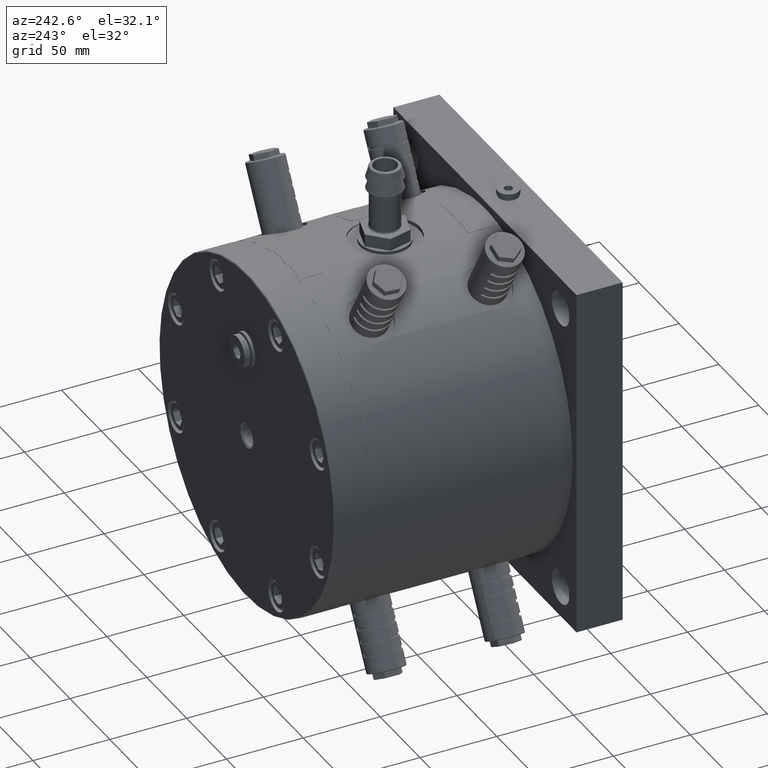
[diagram: clean part render]
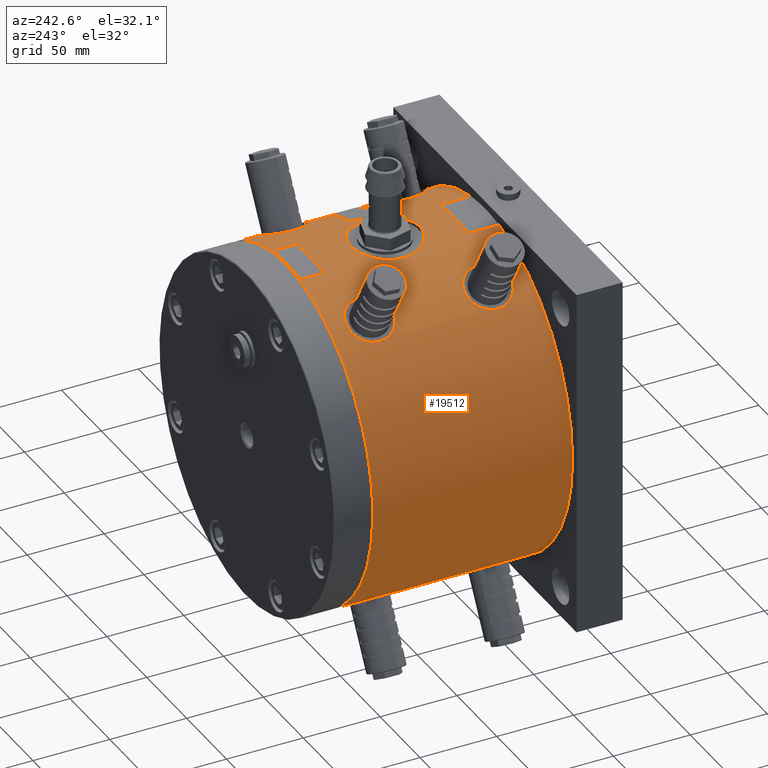
[diagram: same view with one face highlighted and labeled with its STEP entity id]
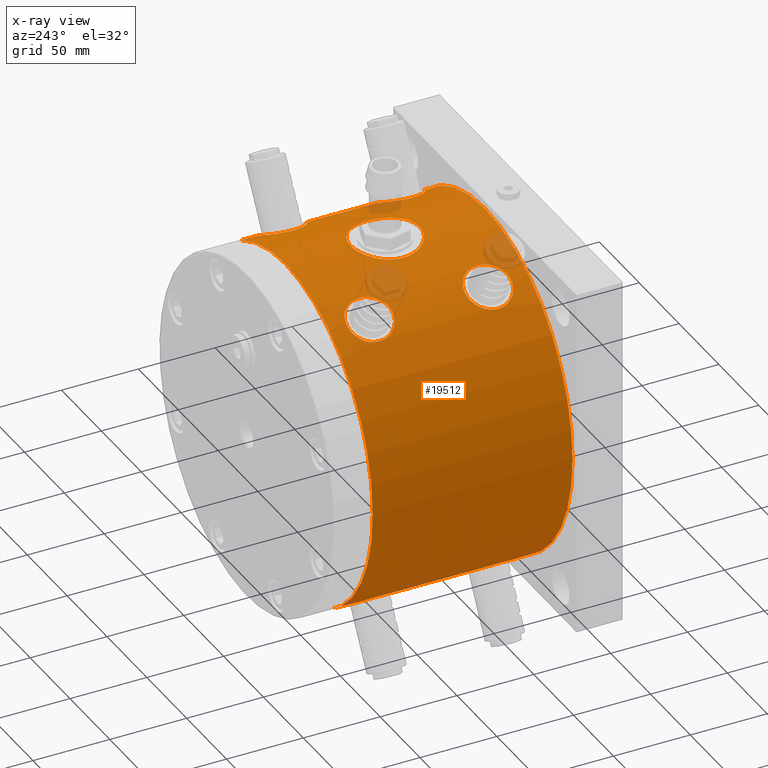
[diagram: x-ray of the same camera — body ghosted, the highlighted face saturated]
A machine part, auxiliary view. The second image highlights one B-rep face of the part: STEP entity #19512.
The next image is the same camera in x-ray: the body ghosted, the highlighted face saturated — about 3% of this face is hidden behind the body in this view.
In plain terms, the highlighted cylindrical surface (partial cylindrical patch) has radius 110 mm, axis along (-0, -1, -0).
Its self-contained STEP definition (entity closure, byte-faithful):
#486 = DIRECTION ( 'NONE',  ( -6.830016210670590000E-018, -1.000000000000000000, -6.938463090587400000E-018 ) ) ;
#588 = EDGE_CURVE ( 'NONE', #29356, #34073, #35598, .T. ) ;
#610 = CARTESIAN_POINT ( 'NONE',  ( -22.30880783820389400, 92.04960092759465300, 107.7140669345592800 ) ) ;
#753 = CARTESIAN_POINT ( 'NONE',  ( -41.49585573748746700, 57.49233083775430900, 101.8729304408842300 ) ) ;
#850 = CARTESIAN_POINT ( 'NONE',  ( 2.943391651004618700, 72.64418835615424500, 109.9702316376385300 ) ) ;
#888 = VERTEX_POINT ( 'NONE', #27437 ) ;
#897 = CARTESIAN_POINT ( 'NONE',  ( -44.36601498533853100, 142.6370508511088500, 100.6566239244783500 ) ) ;
#1009 = CARTESIAN_POINT ( 'NONE',  ( -50.76125806787379000, 70.70832083641069200, 97.58850224491291700 ) ) ;
#1050 = CARTESIAN_POINT ( 'NONE',  ( -67.39905066556947600, 58.47183032774076800, -86.93334325284628500 ) ) ;
#1104 = CARTESIAN_POINT ( 'NONE',  ( -22.49999999999684500, 94.26469904075047200, 107.6742773367892600 ) ) ;
#1141 = CARTESIAN_POINT ( 'NONE',  ( -66.86456164067553200, 138.3344437826817500, 87.34571667560410900 ) ) ;
#1272 = B_SPLINE_CURVE_WITH_KNOTS ( 'NONE', 3,
 ( #10248, #21498, #39579, #50328, #67567, #39067, #56116, #33317, #27770, #39322, #16483, #67804, #4707, #50824, #10738, #44858, #56612, #33559, #10481, #22247, #5202, #50577, #45358, #33803, #22509, #62335 ),
 .UNSPECIFIED., .F., .F.,
 ( 4, 2, 2, 2, 2, 2, 2, 2, 2, 2, 2, 2, 4 ),
 ( 1.387778780781445700E-017, 0.002935161080928785300, 0.004402741621393157400, 0.005870322161857530700, 0.008805483242786274800, 0.01027306378325065400, 0.01174064432371503400, 0.01467580540464377500, 0.01614338594510812700, 0.01761096648557248000, 0.01907854702603683700, 0.02054612756650119100, 0.02348128864742987700 ),
 .UNSPECIFIED. ) ;
#1286 = CARTESIAN_POINT ( 'NONE',  ( -62.71939616084651400, 68.40971195551266200, -90.36826708068115000 ) ) ;
#1336 = CARTESIAN_POINT ( 'NONE',  ( 5.123763657298773000, 73.08801994398592700, 109.8811949605317400 ) ) ;
#1351 = ORIENTED_EDGE ( 'NONE', *, *, #36567, .F. ) ;
#1373 = CARTESIAN_POINT ( 'NONE',  ( -47.99057610973504500, 146.2425945912482100, 98.98016766180340700 ) ) ;
#1482 = CARTESIAN_POINT ( 'NONE',  ( -67.32168205064000700, 58.95580905743143100, 86.99310618436059900 ) ) ;
#1588 = CARTESIAN_POINT ( 'NONE',  ( 9.302096145933251800, 74.49981503847310200, 109.6080816290317600 ) ) ;
#1628 = CARTESIAN_POINT ( 'NONE',  ( -61.37611875267313600, 146.4938045488602500, 91.28614931847867800 ) ) ;
#1648 = CARTESIAN_POINT ( 'NONE',  ( -64.20863761889768300, 123.2347757759039700, -89.31613246225448700 ) ) ;
#1881 = CARTESIAN_POINT ( 'NONE',  ( -55.84316562856380300, 148.4764315020141200, 94.77227220614103900 ) ) ;
#1903 = CARTESIAN_POINT ( 'NONE',  ( -59.51822178853132800, 119.4553187873530100, -92.50829983222334400 ) ) ;
#1995 = CARTESIAN_POINT ( 'NONE',  ( -67.38002421564166900, 58.46572539799910100, 86.94788521357661200 ) ) ;
#2001 = CARTESIAN_POINT ( 'NONE',  ( 46.87201254164202200, 68.41435458101086900, 99.51728408607633000 ) ) ;
#2484 = CARTESIAN_POINT ( 'NONE',  ( -56.68984866951740300, 71.37953628738367200, 94.26825438269935400 ) ) ;
#2834 = CARTESIAN_POINT ( 'NONE',  ( 41.49585573749361300, 56.50000000000000000, 101.8729304408834400 ) ) ;
#2922 = CARTESIAN_POINT ( 'NONE',  ( -65.00330688057832200, 47.34675912917489200, 88.74048389549014400 ) ) ;
#2976 = EDGE_CURVE ( 'NONE', #41892, #32686, #20516, .T. ) ;
#3043 = CARTESIAN_POINT ( 'NONE',  ( -15.40106798020403100, 111.4193408588983700, 108.9177733786155400 ) ) ;
#3053 = CARTESIAN_POINT ( 'NONE',  ( 49.54967788804868400, 119.8295194950019300, 98.20913307900634900 ) ) ;
#3109 = CARTESIAN_POINT ( 'NONE',  ( -67.47661785102094700, 133.5000000000000000, 86.87293044088477200 ) ) ;
#3160 = CARTESIAN_POINT ( 'NONE',  ( -53.29905707791028400, 41.59600379308926000, 96.22957867025584700 ) ) ;
#3396 = CARTESIAN_POINT ( 'NONE',  ( -41.97184671453476300, 52.59177532831623800, 101.6778490627065300 ) ) ;
#3526 = CARTESIAN_POINT ( 'NONE',  ( 46.88071578785303500, 121.5783489470142900, 99.51318159049348800 ) ) ;
#3580 = CARTESIAN_POINT ( 'NONE',  ( 54.14119871927365300, 148.5000000000000300, 95.75862356689610500 ) ) ;
#3632 = CARTESIAN_POINT ( 'NONE',  ( -65.87325186289153600, 49.00111862819156300, 88.09522651519789300 ) ) ;
#3772 = CARTESIAN_POINT ( 'NONE',  ( 46.19389053677043200, 122.1986083519707900, 99.83289834733564300 ) ) ;
#3831 = CARTESIAN_POINT ( 'NONE',  ( 55.00000000000179800, 148.5000000000000000, 95.26279441628730600 ) ) ;
#3944 = CARTESIAN_POINT ( 'NONE',  ( -66.84571752639047300, 128.6723428778709900, 87.35943417511765600 ) ) ;
#3978 = CARTESIAN_POINT ( 'NONE',  ( -41.49585573748745300, 56.50000000000000000, 101.8729304408842000 ) ) ;
#3994 = CARTESIAN_POINT ( 'NONE',  ( 49.15362253575272400, 43.03860036403148800, 98.40787451029594000 ) ) ;
#4183 = CARTESIAN_POINT ( 'NONE',  ( -50.77785221671877000, 119.2852745775180500, 97.57987819917706000 ) ) ;
#4232 = CARTESIAN_POINT ( 'NONE',  ( 21.73518592926861700, 100.8632940461184500, 107.8314896072803000 ) ) ;
#4397 = DIRECTION ( 'NONE',  ( -6.830016210670590000E-018, -1.000000000000000000, -6.938463090587400000E-018 ) ) ;
#4486 = ORIENTED_EDGE ( 'NONE', *, *, #9090, .F. ) ;
#4490 = CARTESIAN_POINT ( 'NONE',  ( 41.49585573749361300, 56.50000000000000000, 101.8729304408834400 ) ) ;
#4595 = CARTESIAN_POINT ( 'NONE',  ( -54.99999999999781200, 148.5000000000000300, -95.26279441628936700 ) ) ;
#4707 = CARTESIAN_POINT ( 'NONE',  ( -64.20863761889769700, 46.23477577590396900, -89.31613246225452900 ) ) ;
#4722 = CARTESIAN_POINT ( 'NONE',  ( 42.91406821357298900, 49.84234052807737200, 101.2843878849794800 ) ) ;
#4782 = LINE ( 'NONE', #72194, #65766 ) ;
#4865 = EDGE_CURVE ( 'NONE', #52742, #43639, #65137, .T. ) ;
#4988 = EDGE_CURVE ( 'NONE', #888, #22745, #70493, .T. ) ;
#5202 = CARTESIAN_POINT ( 'NONE',  ( -59.12998453113242200, 42.29026100554472100, -92.75702765082833400 ) ) ;
#5210 = CARTESIAN_POINT ( 'NONE',  ( -10.00365586186372000, 115.2079945869218000, 109.5527378317715100 ) ) ;
#5233 = ORIENTED_EDGE ( 'NONE', *, *, #52676, .F. ) ;
#5249 = ORIENTED_EDGE ( 'NONE', *, *, #15631, .T. ) ;
#5329 = CARTESIAN_POINT ( 'NONE',  ( 19.52222973451518900, 83.71765993991638800, 108.2569584611141400 ) ) ;
#5583 = CARTESIAN_POINT ( 'NONE',  ( 17.84954760784669100, 81.29671540481795900, 108.5423576577773900 ) ) ;
#5603 = CARTESIAN_POINT ( 'NONE',  ( -55.84860240730694200, 118.5000000000000300, -94.77285358799449000 ) ) ;
#5965 = EDGE_CURVE ( 'NONE', #18206, #47817, #1272, .T. ) ;
#6028 = CARTESIAN_POINT ( 'NONE',  ( -62.39115849485464300, 68.70432254648994800, -90.59531076476264400 ) ) ;
#6199 = CARTESIAN_POINT ( 'NONE',  ( -58.32622953629562800, 147.9979465545467900, -93.26453569452951300 ) ) ;
#6342 = CARTESIAN_POINT ( 'NONE',  ( -1.465473018492106100, 72.53544256512498100, 109.9927326496315200 ) ) ;
#6443 = B_SPLINE_CURVE_WITH_KNOTS ( 'NONE', 3,
 ( #45753, #70467, #36259, #41275, #30451, #69713, #35490, #29953, #7168, #47303, #64997, #24220, #1648, #41782, #74195, #30697, #17124, #11392, #52771, #1903, #57255, #64511, #7430, #13412, #5603, #22918 ),
 .UNSPECIFIED., .F., .F.,
 ( 4, 2, 2, 2, 2, 2, 2, 2, 2, 2, 2, 2, 4 ),
 ( 0.0000000000000000000, 0.002935161080928609200, 0.004402741621392958700, 0.005870322161857307800, 0.008805483242786005900, 0.01027306378325039600, 0.01174064432371478700, 0.01467580540464353600, 0.01614338594510792600, 0.01761096648557231400, 0.01907854702603670200, 0.02054612756650109000, 0.02348128864742986600 ),
 .UNSPECIFIED. ) ;
#6471 = CARTESIAN_POINT ( 'NONE',  ( -63.34643545513266400, 144.7844067749361700, -89.92983634520430800 ) ) ;
#6607 = CARTESIAN_POINT ( 'NONE',  ( 1.480705032791373800, 72.50057601792038000, 109.9998821781601400 ) ) ;
#6639 = CARTESIAN_POINT ( 'NONE',  ( -66.24069671416066300, 140.1457033436693100, 87.81927411879026100 ) ) ;
#6800 = CARTESIAN_POINT ( 'NONE',  ( -67.47661785102259600, 57.49166074068851600, -86.87293044088572500 ) ) ;
#6982 = CARTESIAN_POINT ( 'NONE',  ( -65.66127200388622500, 141.4370493038174700, -88.25346243001510500 ) ) ;
#7108 = CARTESIAN_POINT ( 'NONE',  ( 10.93639626164712200, 75.33327061710480200, 109.4554758626004700 ) ) ;
#7150 = CARTESIAN_POINT ( 'NONE',  ( -57.10905280024262300, 148.3066168489826900, 94.01482753146093800 ) ) ;
#7168 = CARTESIAN_POINT ( 'NONE',  ( -65.88680517376533900, 125.9810839057024500, -88.08648799259862000 ) ) ;
#7270 = CARTESIAN_POINT ( 'NONE',  ( 49.14189999346393700, 69.95490544188597000, 98.41372370691871700 ) ) ;
#7359 = CARTESIAN_POINT ( 'NONE',  ( 55.00000000000208200, 41.50000000000000000, 95.26279441628719300 ) ) ;
#7370 = CARTESIAN_POINT ( 'NONE',  ( -19.48501139376506000, 83.72475951454440200, 108.2610747473960100 ) ) ;
#7415 = CARTESIAN_POINT ( 'NONE',  ( -56.68984866951740300, 148.3795362873836200, 94.26825438269934000 ) ) ;
#7430 = CARTESIAN_POINT ( 'NONE',  ( -57.92501648006766100, 118.8837879815428500, -93.51431574243839900 ) ) ;
#7496 = CARTESIAN_POINT ( 'NONE',  ( -65.86685688981893300, 141.0125529405307200, -88.10000816313984700 ) ) ;
#7652 = CARTESIAN_POINT ( 'NONE',  ( -59.13147146180704500, 147.7352259090110100, 92.75935109674468000 ) ) ;
#7772 = B_SPLINE_CURVE_WITH_KNOTS ( 'NONE', 3,
 ( #33332, #73307, #15279, #27054, #50103, #38348, #39082, #67340, #3994, #49632, #50346, #21035, #61380, #67822, #9550, #38591, #26830, #10011, #4722, #55410, #44875, #38839, #44639, #27785, #44153, #4490 ),
 .UNSPECIFIED., .F., .F.,
 ( 4, 2, 2, 2, 2, 2, 2, 2, 2, 2, 2, 2, 4 ),
 ( 0.04695152589261158300, 0.04988655940996862500, 0.05135407616864713600, 0.05282159292732564700, 0.05428910968600415800, 0.05575662644468266900, 0.05869165996203970500, 0.06015917672071823000, 0.06162669347939675500, 0.06456172699675383200, 0.06602924375543238500, 0.06749676051411092300, 0.07043179403146804200 ),
 .UNSPECIFIED. ) ;
#8132 = CARTESIAN_POINT ( 'NONE',  ( -67.38002421564165400, 135.4657253979991100, 86.94788521357661200 ) ) ;
#8261 = CARTESIAN_POINT ( 'NONE',  ( 41.49585573749361300, 56.50000000000000000, 101.8729304408834400 ) ) ;
#8369 = CARTESIAN_POINT ( 'NONE',  ( 41.58683039740695600, 58.46569809250814100, 101.8360080891172900 ) ) ;
#8436 = CARTESIAN_POINT ( 'NONE',  ( -44.93262530909446900, 46.57651056820414900, 100.4068795361841600 ) ) ;
#8625 = CARTESIAN_POINT ( 'NONE',  ( 49.53710342774751000, 147.1640806356287500, 98.21547281882284600 ) ) ;
#8685 = CARTESIAN_POINT ( 'NONE',  ( -67.47661785102094700, 56.50000000000000000, 86.87293044088477200 ) ) ;
#8728 = ORIENTED_EDGE ( 'NONE', *, *, #49770, .T. ) ;
#8935 = CARTESIAN_POINT ( 'NONE',  ( -67.07396317453279300, 52.61174479591856800, 87.18431140449595800 ) ) ;
#9090 = EDGE_CURVE ( 'NONE', #44438, #10826, #20511, .T. ) ;
#9122 = CARTESIAN_POINT ( 'NONE',  ( 43.33817500096914400, 141.0122016300274800, 101.1044128222228000 ) ) ;
#9170 = CARTESIAN_POINT ( 'NONE',  ( -63.65269619284914900, 45.55460179079172200, 89.71318019435754800 ) ) ;
#9253 = CARTESIAN_POINT ( 'NONE',  ( -56.70641397239695900, 118.5989113881002300, 94.26188280728366900 ) ) ;
#9296 = CARTESIAN_POINT ( 'NONE',  ( -22.49999999999684900, 95.00000000000000000, 107.6742773367892700 ) ) ;
#9303 = CARTESIAN_POINT ( 'NONE',  ( 42.23202466947427100, 128.6740996013362200, 101.5700589946708900 ) ) ;
#9407 = CARTESIAN_POINT ( 'NONE',  ( -47.26681041718617100, 44.29207741565509300, 99.32782011990424600 ) ) ;
#9550 = CARTESIAN_POINT ( 'NONE',  ( 44.94225280864079500, 46.59928651052120300, 100.4006646543796000 ) ) ;
#9582 = VERTEX_POINT ( 'NONE', #7359 ) ;
#9724 = CARTESIAN_POINT ( 'NONE',  ( -54.15025563726513300, 118.4993221215978000, 95.75350129099517500 ) ) ;
#10005 = CARTESIAN_POINT ( 'NONE',  ( -5.843203330669286500, 116.7405245659634300, 109.8469669373184000 ) ) ;
#10011 = CARTESIAN_POINT ( 'NONE',  ( 43.34171359979412600, 48.98123875061073600, 101.1028965880188100 ) ) ;
#10248 = CARTESIAN_POINT ( 'NONE',  ( -67.47661785102252500, 56.50000000000000000, -86.87293044088572500 ) ) ;
#10253 = CARTESIAN_POINT ( 'NONE',  ( -5.130805205746894700, 116.9194692636989400, 109.8826340906861400 ) ) ;
#10365 = CARTESIAN_POINT ( 'NONE',  ( 41.49585573749361300, 133.5000000000000000, 101.8729304408834400 ) ) ;
#10481 = CARTESIAN_POINT ( 'NONE',  ( -60.27637272409272400, 42.82931344094646400, -92.01610268829898600 ) ) ;
#10738 = CARTESIAN_POINT ( 'NONE',  ( -62.74014335178182500, 44.57783809937723200, -90.35679790817862100 ) ) ;
#10826 = VERTEX_POINT ( 'NONE', #34641 ) ;
#10832 = DIRECTION ( 'NONE',  ( -6.830016210670590000E-018, -1.000000000000000000, -6.938463090587400000E-018 ) ) ;
#10860 = CARTESIAN_POINT ( 'NONE',  ( 22.50000000000316200, 93.50912162692091600, 107.6742773367888200 ) ) ;
#10946 = CARTESIAN_POINT ( 'NONE',  ( -41.97184671453476300, 129.5917753283162300, 101.6778490627065300 ) ) ;
#10996 = CARTESIAN_POINT ( 'NONE',  ( -2.965418149742522500, 117.3159113249892400, 109.9624698325246000 ) ) ;
#11067 = VERTEX_POINT ( 'NONE', #54403 ) ;
#11392 = CARTESIAN_POINT ( 'NONE',  ( -60.64628568866388700, 120.0382505850098800, -91.77263247047696400 ) ) ;
#11421 = CARTESIAN_POINT ( 'NONE',  ( 22.50000000000314800, 95.00000000000000000, 107.6742773367890000 ) ) ;
#11867 = CARTESIAN_POINT ( 'NONE',  ( -3.680907143313100400, 72.79091843333921500, 109.9407720995950400 ) ) ;
#12015 = CARTESIAN_POINT ( 'NONE',  ( -47.99057610973505900, 69.24259459124819200, 98.98016766180342100 ) ) ;
#12063 = CARTESIAN_POINT ( 'NONE',  ( -55.85824670673041900, 71.50000000000001400, -94.76728544912619200 ) ) ;
#12116 = CARTESIAN_POINT ( 'NONE',  ( -13.11759046168236700, 76.70479895993280200, 109.2167738330900200 ) ) ;
#12236 = CARTESIAN_POINT ( 'NONE',  ( -67.47661785102258100, 134.4916607406885000, -86.87293044088568200 ) ) ;
#12263 = CARTESIAN_POINT ( 'NONE',  ( -44.94177216557417200, 66.40007734712730800, 100.4008781842607900 ) ) ;
#12313 = CARTESIAN_POINT ( 'NONE',  ( -61.37891643990315800, 69.52021573018605200, -91.28689161232054500 ) ) ;
#12361 = CARTESIAN_POINT ( 'NONE',  ( -21.77438936901189600, 89.14328014070808600, 107.8237592168251800 ) ) ;
#12406 = CARTESIAN_POINT ( 'NONE',  ( -66.41166731915267000, 139.6962822698482100, 87.68994469227067200 ) ) ;
#12512 = B_SPLINE_CURVE_WITH_KNOTS ( 'NONE', 3,
 ( #59016, #24450, #64008, #24203, #58538, #29681, #35732, #17905, #64245, #64492, #897, #29935, #47764, #69953, #70208, #1373, #63756, #13154, #53256, #41020, #69690, #46779, #58025, #35990, #41516, #30433, #1881, #7415, #7150, #12912, #7652, #53007, #35475, #1628, #70452, #23688, #36240, #18651, #29444, #69434, #35228, #6639, #12406, #1141, #52497, #18157, #8132, #59743, #25424, #3109 ),
 .UNSPECIFIED., .F., .F.,
 ( 4, 2, 2, 2, 2, 2, 2, 2, 2, 2, 2, 2, 2, 2, 2, 2, 2, 2, 2, 2, 2, 2, 2, 2, 4 ),
 ( 0.0000000000000000000, 0.002934468318681610600, 0.004401702478022412000, 0.005868936637363214200, 0.008803404956044824000, 0.01027063911538562400, 0.01173787327472642300, 0.01467234159340796400, 0.01613957575274873500, 0.01760680991208950600, 0.01907404407143028000, 0.02054127823077105100, 0.02347574654945257200, 0.02494298070879332600, 0.02641021486813407600, 0.02934468318681554600, 0.03081191734615628200, 0.03227915150549701100, 0.03521361982417839400, 0.03814808814285977600, 0.03961532230220044700, 0.04108255646154112400, 0.04401702478022248600, 0.04548425893956316300, 0.04695149309890384000 ),
 .UNSPECIFIED. ) ;
#12745 = CARTESIAN_POINT ( 'NONE',  ( -66.84077880077600800, 138.3457809115766700, -87.36321400326114900 ) ) ;
#12776 = CARTESIAN_POINT ( 'NONE',  ( -52.01914092022295900, 71.11511754889781400, 96.92390645007353100 ) ) ;
#12779 = CARTESIAN_POINT ( 'NONE',  ( 55.00000000000179800, 71.50000000000000000, 95.26279441628730600 ) ) ;
#12879 = CARTESIAN_POINT ( 'NONE',  ( 14.87131545313436100, 78.05196574596611500, 108.9951295857356500 ) ) ;
#12912 = CARTESIAN_POINT ( 'NONE',  ( -58.33997524099881100, 148.0189316633640100, 93.25971326851681900 ) ) ;
#13154 = CARTESIAN_POINT ( 'NONE',  ( -49.15113218903507400, 146.9600096037153200, 98.40911600375180500 ) ) ;
#13177 = CARTESIAN_POINT ( 'NONE',  ( -67.47661785102094700, 133.5000000000000000, 86.87293044088477200 ) ) ;
#13256 = CARTESIAN_POINT ( 'NONE',  ( -55.84316562856380300, 71.47643150201413700, 94.77227220614102500 ) ) ;
#13412 = CARTESIAN_POINT ( 'NONE',  ( -56.68589201438432200, 118.5950885856317600, -94.27432725033897000 ) ) ;
#13504 = CARTESIAN_POINT ( 'NONE',  ( -58.33997524099881800, 71.01893166336400000, 93.25971326851683300 ) ) ;
#13515 = CARTESIAN_POINT ( 'NONE',  ( -22.49999999999684900, 95.00000000000000000, 107.6742773367892700 ) ) ;
#13731 = VERTEX_POINT ( 'NONE', #2834 ) ;
#13741 = CARTESIAN_POINT ( 'NONE',  ( -63.35680746477859100, 67.80672737795083500, 89.92446149412251100 ) ) ;
#13746 = CARTESIAN_POINT ( 'NONE',  ( 51.58260875306088900, 70.99067570843037300, 97.15685955155851200 ) ) ;
#14310 = CARTESIAN_POINT ( 'NONE',  ( 42.91406821357298200, 126.8423405280773600, 101.2843878849794500 ) ) ;
#14373 = CARTESIAN_POINT ( 'NONE',  ( 42.38698675335265200, 138.7906548014082700, 101.5055628020992800 ) ) ;
#14419 = CARTESIAN_POINT ( 'NONE',  ( -66.71360454585648400, 51.21190626297134000, 87.46045087747086200 ) ) ;
#14550 = CARTESIAN_POINT ( 'NONE',  ( 45.24492976688706100, 123.2356845369524500, 100.2647351227119700 ) ) ;
#14617 = CARTESIAN_POINT ( 'NONE',  ( 42.91132041894744000, 140.1513910030947200, 101.2855482440697600 ) ) ;
#14661 = CARTESIAN_POINT ( 'NONE',  ( -44.36130617469250800, 47.33040909670133100, 100.6597242001387000 ) ) ;
#14784 = CARTESIAN_POINT ( 'NONE',  ( -21.74109405656154300, 100.8409253755507100, 107.8302948204350600 ) ) ;
#14789 = CARTESIAN_POINT ( 'NONE',  ( 43.34171359979414000, 125.9812387506107400, 101.1028965880187900 ) ) ;
#15034 = CARTESIAN_POINT ( 'NONE',  ( 44.94225280864078800, 123.5992865105212000, 100.4006646543796000 ) ) ;
#15146 = CARTESIAN_POINT ( 'NONE',  ( -42.74169125201727600, 50.29018620362496300, 101.3567143437156100 ) ) ;
#15222 = CARTESIAN_POINT ( 'NONE',  ( -67.07396317453276400, 129.6117447959185800, 87.18431140449591500 ) ) ;
#15273 = CARTESIAN_POINT ( 'NONE',  ( -19.11161203835839800, 106.8969927100147300, 108.3278304287842000 ) ) ;
#15279 = CARTESIAN_POINT ( 'NONE',  ( 53.30098263162853600, 41.59506018971785600, 96.22860977010842000 ) ) ;
#15341 = CARTESIAN_POINT ( 'NONE',  ( 45.23919527808740100, 143.7575962465919000, 100.2673198321938800 ) ) ;
#15463 = CARTESIAN_POINT ( 'NONE',  ( -60.67218536938038700, 120.0257255368022700, 91.75899327291757900 ) ) ;
#15631 = EDGE_CURVE ( 'NONE', #32686, #41892, #19076, .T. ) ;
#15698 = CARTESIAN_POINT ( 'NONE',  ( -66.71360454585646900, 128.2119062629713300, 87.46045087747090500 ) ) ;
#15747 = CARTESIAN_POINT ( 'NONE',  ( 8.275859887849916800, 115.9259499429459600, 109.6887700008534100 ) ) ;
#15858 = AXIS2_PLACEMENT_3D ( 'NONE', #39952, #57472, #23132 ) ;
#15936 = CARTESIAN_POINT ( 'NONE',  ( -65.87325186289153600, 126.0011186281915500, 88.09522651519786500 ) ) ;
#15995 = CARTESIAN_POINT ( 'NONE',  ( -1.496307013896189600, 117.4532546447224800, 109.9904464671720800 ) ) ;
#16483 = CARTESIAN_POINT ( 'NONE',  ( -64.98702976386093200, 47.36108728263972300, -88.75125502807243500 ) ) ;
#16489 = CARTESIAN_POINT ( 'NONE',  ( 5.100895527607552700, 116.9264954757722800, 109.8840368491621100 ) ) ;
#16688 = CARTESIAN_POINT ( 'NONE',  ( -42.74169125201727600, 127.2901862036249800, 101.3567143437156100 ) ) ;
#16743 = CARTESIAN_POINT ( 'NONE',  ( -8.297082787144308500, 115.9175776133961900, 109.6871717011063200 ) ) ;
#17124 = CARTESIAN_POINT ( 'NONE',  ( -61.36794823474959100, 120.5005791127801400, -91.29163689982442500 ) ) ;
#17221 = CARTESIAN_POINT ( 'NONE',  ( -56.69564859787998800, 148.4027536863135600, -94.26836026988196700 ) ) ;
#17359 = CARTESIAN_POINT ( 'NONE',  ( 55.00000000000208900, 30.00000000000000000, 95.26279441628719300 ) ) ;
#17611 = CARTESIAN_POINT ( 'NONE',  ( 7.948997059473845700, 73.93818569274080200, 109.7145113321530700 ) ) ;
#17765 = CARTESIAN_POINT ( 'NONE',  ( -49.54680891154439600, 70.16901673538986000, 98.21057909524891700 ) ) ;
#17805 = CARTESIAN_POINT ( 'NONE',  ( -63.64401639651961800, 67.45530219753904100, -89.71933769637199400 ) ) ;
#17863 = CARTESIAN_POINT ( 'NONE',  ( 17.62091250809066200, 81.00393282167802100, 108.5797394847812400 ) ) ;
#17905 = CARTESIAN_POINT ( 'NONE',  ( -42.91342487160447000, 140.1561436492018200, 101.2846591502056300 ) ) ;
#18065 = CARTESIAN_POINT ( 'NONE',  ( -66.40755280392672000, 62.70730703024356200, -87.69305892977149600 ) ) ;
#18121 = CARTESIAN_POINT ( 'NONE',  ( -15.38181717084337300, 78.57484313033462800, 108.9195843644281200 ) ) ;
#18157 = CARTESIAN_POINT ( 'NONE',  ( -67.32168205064000700, 135.9558090574314500, 86.99310618436064100 ) ) ;
#18206 = VERTEX_POINT ( 'NONE', #36864 ) ;
#18313 = CARTESIAN_POINT ( 'NONE',  ( -66.23943948723994900, 63.14868262913060400, -87.82021937632286800 ) ) ;
#18558 = CARTESIAN_POINT ( 'NONE',  ( -64.49107650919462700, 66.41997701080434500, -89.11443524878461600 ) ) ;
#18608 = CARTESIAN_POINT ( 'NONE',  ( -21.34753616011896300, 87.74055372779717700, 107.9102054968603900 ) ) ;
#18651 = CARTESIAN_POINT ( 'NONE',  ( -64.50054330602117100, 143.4080225671389100, 89.10765253537445600 ) ) ;
#18755 = CARTESIAN_POINT ( 'NONE',  ( -67.09152691243355100, 60.39930943712926800, 87.17089312083047000 ) ) ;
#19011 = CARTESIAN_POINT ( 'NONE',  ( -51.59368647567854500, 70.99405254350125500, 97.15097841446598200 ) ) ;
#19016 = CYLINDRICAL_SURFACE ( 'NONE', #19294, 110.0000000000001100 ) ;
#19076 = B_SPLINE_CURVE_WITH_KNOTS ( 'NONE', 3,
 ( #9296, #37388, #38110, #49140, #14784, #32352, #66137, #60409, #43896, #20548, #15273, #21029, #65882, #3043, #61377, #62105, #32843, #33078, #5210, #16743, #50338, #44385, #45366, #10005, #10253, #21756, #10996, #50584, #15995, #73047, #27288, #33812, #39329, #16489, #28033, #72805, #67572, #33568, #15747, #21272, #27532, #61621, #61854, #22000, #21507, #33324, #38832, #56124, #44866, #67089, #51088, #27045, #38582, #4232, #73298, #39075, #50093, #55888 ),
 .UNSPECIFIED., .F., .F.,
 ( 4, 2, 2, 2, 2, 2, 2, 2, 2, 2, 2, 2, 2, 2, 2, 2, 2, 2, 2, 2, 2, 2, 2, 2, 2, 2, 2, 2, 4 ),
 ( 0.07053144637623438900, 0.07493851276642869700, 0.07714204596152585100, 0.07934557915662302000, 0.08154911235172017400, 0.08375264554681732800, 0.08815971193701166400, 0.09036324513210883300, 0.09256677832720600100, 0.09697384471740029500, 0.09807561131494885200, 0.09917737791249742200, 0.1013809111075945500, 0.1035844443026916800, 0.1046862109002402300, 0.1057879774977887900, 0.1101950438879830300, 0.1123985770830801500, 0.1135003436806287000, 0.1146021102781772400, 0.1190091766683714600, 0.1212127098634686000, 0.1234162430585657200, 0.1256197762536628600, 0.1278233094487599700, 0.1322303758389541700, 0.1344339090340512800, 0.1366374422291483900, 0.1410445086193426500 ),
 .UNSPECIFIED. ) ;
#19222 = CARTESIAN_POINT ( 'NONE',  ( -67.47661785102252500, 133.5000000000000000, -86.87293044088572500 ) ) ;
#19294 = AXIS2_PLACEMENT_3D ( 'NONE', #32605, #27294, #43670 ) ;
#19493 = CARTESIAN_POINT ( 'NONE',  ( -65.86629010251938600, 64.01393125370241000, 88.10043493683439000 ) ) ;
#19500 = CARTESIAN_POINT ( 'NONE',  ( 54.14119871927365300, 71.50000000000002800, 95.75862356689613400 ) ) ;
#19512 = ADVANCED_FACE ( 'NONE', ( #55759, #44148, #53125, #63807 ), #19016, .T. ) ;
#19940 = CARTESIAN_POINT ( 'NONE',  ( -41.58703663094830500, 54.52732000389985200, 101.8359300560135900 ) ) ;
#20183 = CARTESIAN_POINT ( 'NONE',  ( -55.86759835492346600, 41.50068496245377500, 94.76177841893179700 ) ) ;
#20428 = CARTESIAN_POINT ( 'NONE',  ( -46.21208990483966500, 45.21194231315273300, 99.82278964057063300 ) ) ;
#20511 = B_SPLINE_CURVE_WITH_KNOTS ( 'NONE', 3,
 ( #49808, #32304, #44094, #38293, #15222, #3944, #15698, #72996, #72755, #15936, #20747, #55355, #61574, #56070, #60834, #38532, #66319, #66797, #15463, #27240, #26521, #38776, #44575, #9253, #61085, #9724, #27012, #67038, #32786, #4183, #55830, #33275, #45300, #28478, #62286, #68004, #45567, #62547, #74256, #45059, #73481, #45816, #16688, #56320, #73245, #10946, #68497, #67767, #39793, #27981 ),
 .UNSPECIFIED., .F., .F.,
 ( 4, 2, 2, 2, 2, 2, 2, 2, 2, 2, 2, 2, 2, 2, 2, 2, 2, 2, 2, 2, 2, 2, 2, 2, 4 ),
 ( 0.04695149309890384000, 0.04988525072236446600, 0.05135212953409477900, 0.05281900834582509100, 0.05428588715755540400, 0.05575276596928571700, 0.05868652359274639100, 0.06015340240447673800, 0.06162028121620707200, 0.06455403883966776000, 0.06602091765139811400, 0.06748779646312846900, 0.07042155408658917800, 0.07335531171004988600, 0.07482219052178025500, 0.07628906933351060900, 0.07922282695697135900, 0.08068970576870171400, 0.08215658458043206800, 0.08509034220389281900, 0.08655722101562315900, 0.08802409982735348600, 0.08949097863908382600, 0.09095785745081416700, 0.09389161507427483400 ),
 .UNSPECIFIED. ) ;
#20516 = B_SPLINE_CURVE_WITH_KNOTS ( 'NONE', 3,
 ( #62966, #10860, #40467, #46230, #34440, #50700, #57233, #39442, #5329, #45483, #50949, #5583, #17863, #64454, #23908, #12879, #52967, #47246, #30144, #40981, #7108, #46741, #1588, #17611, #40717, #63461, #35687, #1336, #34940, #850, #6607, #69159, #6342, #51965, #11867, #70171, #24158, #46490, #24414, #35954, #69651, #12116, #52455, #41718, #23653, #18121, #35427, #41475, #69397, #57729, #7370, #29139, #58241, #52209, #23398, #18608, #12361, #57987, #35193, #610, #63970, #29645, #1104, #41228 ),
 .UNSPECIFIED., .F., .F.,
 ( 4, 2, 2, 2, 2, 2, 2, 2, 2, 2, 2, 2, 2, 2, 2, 2, 2, 2, 2, 2, 2, 2, 2, 2, 2, 2, 2, 2, 2, 2, 2, 4 ),
 ( 0.0000000000000000000, 0.004408215398514545200, 0.006612323097771838200, 0.008816430797029130300, 0.01322464619554375300, 0.01432670004517241900, 0.01542875389480108200, 0.01763286159405844800, 0.02204107699257313500, 0.02314313084220180300, 0.02424518469183047100, 0.02644929239108778300, 0.02865340009034509200, 0.02975545393997374600, 0.03085750778960240000, 0.03526572318811705500, 0.03746983088737437100, 0.03967393858663169300, 0.04408215398514633800, 0.04628626168440366100, 0.04849036938366097600, 0.05069447708291829900, 0.05179653093254695700, 0.05289858478217562100, 0.05730680018069028700, 0.05951090787994763000, 0.06061296172957630900, 0.06171501557920498100, 0.06612323097771973000, 0.06722528482734839400, 0.06832733867697705900, 0.07053144637623438900 ),
 .UNSPECIFIED. ) ;
#20548 = CARTESIAN_POINT ( 'NONE',  ( -19.49480404895743000, 106.2581634912079900, 108.2593068349698500 ) ) ;
#20666 = CARTESIAN_POINT ( 'NONE',  ( -67.40096632091989200, 54.54655076226956800, 86.93185516494681100 ) ) ;
#20747 = CARTESIAN_POINT ( 'NONE',  ( -65.66737460663368600, 125.5751307727141500, 88.24891930854326500 ) ) ;
#20859 = CARTESIAN_POINT ( 'NONE',  ( 47.98328296809495400, 146.2375612828123800, 98.98370271664363400 ) ) ;
#20910 = DIRECTION ( 'NONE',  ( -6.830016210670590000E-018, -1.000000000000000000, -6.938463090587400000E-018 ) ) ;
#20943 = ORIENTED_EDGE ( 'NONE', *, *, #5965, .T. ) ;
#21029 = CARTESIAN_POINT ( 'NONE',  ( -17.88354555231353500, 108.7330768390105500, 108.5397118059922700 ) ) ;
#21035 = CARTESIAN_POINT ( 'NONE',  ( 46.88071578785302100, 44.57834894701427000, 99.51318159049348800 ) ) ;
#21092 = CARTESIAN_POINT ( 'NONE',  ( 49.14189999346395200, 146.9549054418859600, 98.41372370691873100 ) ) ;
#21107 = VECTOR ( 'NONE', #35925, 1000.000000000000000 ) ;
#21272 = CARTESIAN_POINT ( 'NONE',  ( 9.974453652406790400, 115.2218713452353400, 109.5553203330350700 ) ) ;
#21498 = CARTESIAN_POINT ( 'NONE',  ( -67.47661785102262400, 55.50743489515999600, -86.87293044088572500 ) ) ;
#21507 = CARTESIAN_POINT ( 'NONE',  ( 15.38308164253805400, 111.4360939974910300, 108.9203104280656800 ) ) ;
#21756 = CARTESIAN_POINT ( 'NONE',  ( -3.691912603749727400, 117.2071627225957000, 109.9403848369342700 ) ) ;
#22000 = CARTESIAN_POINT ( 'NONE',  ( 14.84016465716168800, 111.9281326206116900, 108.9958674276117000 ) ) ;
#22247 = CARTESIAN_POINT ( 'NONE',  ( -59.51822178853131400, 42.45531878735297900, -92.50829983222334400 ) ) ;
#22503 = CARTESIAN_POINT ( 'NONE',  ( -54.99999999999781200, 148.5000000000000300, -95.26279441628936700 ) ) ;
#22509 = CARTESIAN_POINT ( 'NONE',  ( -55.84860240730693400, 41.50000000000002100, -94.77285358799449000 ) ) ;
#22745 = VERTEX_POINT ( 'NONE', #62708 ) ;
#22918 = CARTESIAN_POINT ( 'NONE',  ( -54.99999999999781200, 118.5000000000000100, -95.26279441628936700 ) ) ;
#23047 = CARTESIAN_POINT ( 'NONE',  ( -41.96538149685191100, 60.38262618978412600, 101.6805171475151300 ) ) ;
#23132 = DIRECTION ( 'NONE',  ( -0.4999999999999995000, 3.154042683594191300E-017, -0.8660254037844389300 ) ) ;
#23246 = DIRECTION ( 'NONE',  ( 6.830016210670590000E-018, 1.000000000000000000, 6.938463090587400000E-018 ) ) ;
#23398 = CARTESIAN_POINT ( 'NONE',  ( -20.64266619090968600, 86.04088389971066400, 108.0458279709841900 ) ) ;
#23653 = CARTESIAN_POINT ( 'NONE',  ( -14.83511473253929200, 78.07943710916308100, 108.9953922350363300 ) ) ;
#23688 = CARTESIAN_POINT ( 'NONE',  ( -62.73334482152392900, 145.4276564662391100, 90.36144414594912200 ) ) ;
#23805 = CARTESIAN_POINT ( 'NONE',  ( -41.58706611462071800, 58.46784326465316200, 101.8359123252691200 ) ) ;
#23853 = CARTESIAN_POINT ( 'NONE',  ( -67.16703803930701600, 59.92507761630572800, -87.11256253239547200 ) ) ;
#23908 = CARTESIAN_POINT ( 'NONE',  ( 16.42395292653987600, 79.60392120173072800, 108.7682276422952900 ) ) ;
#24158 = CARTESIAN_POINT ( 'NONE',  ( -7.252170243995426100, 73.64963189117618500, 109.7692109199430600 ) ) ;
#24203 = CARTESIAN_POINT ( 'NONE',  ( -41.85437676360243100, 136.9069703613782300, 101.7262032247127100 ) ) ;
#24220 = CARTESIAN_POINT ( 'NONE',  ( -64.47745565520322900, 123.5980020171027700, -89.12214662371077600 ) ) ;
#24316 = CARTESIAN_POINT ( 'NONE',  ( 46.18596914117974700, 67.79362547323259500, 99.83655201103239600 ) ) ;
#24414 = CARTESIAN_POINT ( 'NONE',  ( -9.973124643303464200, 74.81758696575273900, 109.5489056632868000 ) ) ;
#24450 = CARTESIAN_POINT ( 'NONE',  ( -41.49585573748746000, 134.4923308377543100, 101.8729304408842300 ) ) ;
#24556 = ORIENTED_EDGE ( 'NONE', *, *, #33654, .T. ) ;
#24612 = VERTEX_POINT ( 'NONE', #19222 ) ;
#24797 = CARTESIAN_POINT ( 'NONE',  ( -54.14678438695981600, 71.49963647718436700, 95.75534144015652800 ) ) ;
#24829 = B_SPLINE_CURVE_WITH_KNOTS ( 'NONE', 3,
 ( #34583, #753, #23805, #35326, #23047, #29049, #63110, #69056, #34842, #28794, #29795, #12263, #40872, #40622, #46632, #12015, #68799, #52114, #17765, #52356, #1009, #19011, #12776, #48114, #24797, #70562, #13256, #2484, #53361, #13504, #70815, #71064, #41621, #42610, #59354, #59114, #13741, #64860, #36342, #65093, #19493, #36589, #30538, #53120, #18755, #1482, #1995, #53858, #30790, #47394 ),
 .UNSPECIFIED., .F., .F.,
 ( 4, 2, 2, 2, 2, 2, 2, 2, 2, 2, 2, 2, 2, 2, 2, 2, 2, 2, 2, 2, 2, 2, 2, 2, 4 ),
 ( 0.0000000000000000000, 0.002934468318681506100, 0.004401702478022255900, 0.005868936637363006100, 0.008803404956044510000, 0.01027063911538524100, 0.01173787327472597200, 0.01467234159340742900, 0.01613957575274817600, 0.01760680991208891600, 0.01907404407142965900, 0.02054127823077039900, 0.02347574654945190300, 0.02494298070879266300, 0.02641021486813341700, 0.02934468318681491800, 0.03081191734615566800, 0.03227915150549641500, 0.03521361982417791500, 0.03814808814285939500, 0.03961532230220012100, 0.04108255646154084000, 0.04401702478022234000, 0.04548425893956308000, 0.04695149309890382600 ),
 .UNSPECIFIED. ) ;
#24844 = VECTOR ( 'NONE', #20910, 1000.000000000000000 ) ;
#24921 = EDGE_CURVE ( 'NONE', #24612, #52742, #6443, .T. ) ;
#25048 = CARTESIAN_POINT ( 'NONE',  ( 49.53710342774753200, 70.16408063562872100, 98.21547281882280300 ) ) ;
#25424 = CARTESIAN_POINT ( 'NONE',  ( -67.47661785102096100, 133.9897778016627400, 86.87293044088481500 ) ) ;
#25610 = CARTESIAN_POINT ( 'NONE',  ( 49.15362253575273100, 120.0386003640315100, 98.40787451029595400 ) ) ;
#25974 = CARTESIAN_POINT ( 'NONE',  ( -57.93271306661742400, 41.88607105611665600, 93.50952219285676400 ) ) ;
#26165 = CARTESIAN_POINT ( 'NONE',  ( 41.58683039740695600, 135.4656980925081500, 101.8360080891172900 ) ) ;
#26212 = CARTESIAN_POINT ( 'NONE',  ( -66.24571430580101600, 49.86706194577062200, 87.81548600258477700 ) ) ;
#26323 = CARTESIAN_POINT ( 'NONE',  ( -54.99999999999781200, 71.50000000000001400, -95.26279441628936700 ) ) ;
#26399 = CARTESIAN_POINT ( 'NONE',  ( 53.28564346796439100, 148.4026187588719100, 96.23710049338200200 ) ) ;
#26454 = CARTESIAN_POINT ( 'NONE',  ( -50.36153676348889300, 42.45264271375175000, 97.79530768309638200 ) ) ;
#26501 = CARTESIAN_POINT ( 'NONE',  ( -54.99999999999786800, 160.0000000000000000, -95.26279441628945200 ) ) ;
#26521 = CARTESIAN_POINT ( 'NONE',  ( -59.13343495370620000, 119.2916135568376200, 92.75483300841601400 ) ) ;
#26830 = CARTESIAN_POINT ( 'NONE',  ( 44.09500968964968600, 47.75980757139787900, 100.7755182548481700 ) ) ;
#26842 = ORIENTED_EDGE ( 'NONE', *, *, #33763, .T. ) ;
#27012 = CARTESIAN_POINT ( 'NONE',  ( -53.29905707791028400, 118.5960037930892500, 96.22957867025583300 ) ) ;
#27045 = CARTESIAN_POINT ( 'NONE',  ( 21.05430094267783000, 102.9688880469053300, 107.9666549844697700 ) ) ;
#27054 = CARTESIAN_POINT ( 'NONE',  ( 52.02257770077829200, 41.88396124761159500, 96.92206369714139700 ) ) ;
#27240 = CARTESIAN_POINT ( 'NONE',  ( -59.52820710310165000, 119.4596791781441600, 92.50188803521174900 ) ) ;
#27288 = CARTESIAN_POINT ( 'NONE',  ( -0.3821334641865361000, 117.4998191388285000, 109.9999630056724100 ) ) ;
#27294 = DIRECTION ( 'NONE',  ( -6.830016210670590000E-018, -1.000000000000000000, -6.938463090587400000E-018 ) ) ;
#27402 = EDGE_CURVE ( 'NONE', #67080, #28505, #60172, .T. ) ;
#27437 = CARTESIAN_POINT ( 'NONE',  ( 55.00000000000208200, 118.5000000000000100, 95.26279441628719300 ) ) ;
#27532 = CARTESIAN_POINT ( 'NONE',  ( 11.26621076029291800, 114.5318037134376300, 109.4284812354038400 ) ) ;
#27770 = CARTESIAN_POINT ( 'NONE',  ( -65.88680517376533900, 48.98108390570246200, -88.08648799259862000 ) ) ;
#27785 = CARTESIAN_POINT ( 'NONE',  ( 41.58721615536951800, 54.53099455967854700, 101.8358511424853500 ) ) ;
#27981 = CARTESIAN_POINT ( 'NONE',  ( -41.49585573748745300, 133.5000000000000000, 101.8729304408842000 ) ) ;
#28033 = CARTESIAN_POINT ( 'NONE',  ( 5.816551179005239500, 116.7478363785916600, 109.8484129816395800 ) ) ;
#28256 = CARTESIAN_POINT ( 'NONE',  ( -62.39115849485464300, 145.7043225464899500, -90.59531076476261500 ) ) ;
#28478 = CARTESIAN_POINT ( 'NONE',  ( -47.26681041718617100, 121.2920774156551100, 99.32782011990423100 ) ) ;
#28505 = VERTEX_POINT ( 'NONE', #37367 ) ;
#28794 = CARTESIAN_POINT ( 'NONE',  ( -44.09463407788775400, 65.23964229230715300, 100.7756830443921500 ) ) ;
#29049 = CARTESIAN_POINT ( 'NONE',  ( -42.23193937554211200, 61.32566037529812800, 101.5700945561388100 ) ) ;
#29093 = CARTESIAN_POINT ( 'NONE',  ( -54.99999999999781200, 71.50000000000001400, -95.26279441628936700 ) ) ;
#29139 = CARTESIAN_POINT ( 'NONE',  ( -20.00867860929915000, 84.70245371145716700, 108.1650788097925900 ) ) ;
#29261 = CARTESIAN_POINT ( 'NONE',  ( -62.71939616084651400, 145.4097119555126800, -90.36826708068113600 ) ) ;
#29272 = CARTESIAN_POINT ( 'NONE',  ( 55.00000000000214600, 160.0000000000000000, 95.26279441628730600 ) ) ;
#29356 = VERTEX_POINT ( 'NONE', #67658 ) ;
#29444 = CARTESIAN_POINT ( 'NONE',  ( -65.00384834937635500, 142.6514685560653400, 88.74006083106060300 ) ) ;
#29584 = CARTESIAN_POINT ( 'NONE',  ( -64.99530793901381300, 65.66621248087801600, -88.74635222999725700 ) ) ;
#29645 = CARTESIAN_POINT ( 'NONE',  ( -22.46404643662559800, 93.52784228887480800, 107.6818098039776300 ) ) ;
#29681 = CARTESIAN_POINT ( 'NONE',  ( -42.23193937554210500, 138.3256603752981600, 101.5700945561388100 ) ) ;
#29795 = CARTESIAN_POINT ( 'NONE',  ( -44.36601498533851600, 65.63705085110885300, 100.6566239244783400 ) ) ;
#29843 = CARTESIAN_POINT ( 'NONE',  ( -59.12424306201709400, 70.71210193365311600, -92.76069508461181100 ) ) ;
#29935 = CARTESIAN_POINT ( 'NONE',  ( -44.94177216557416400, 143.4000773471273100, 100.4008781842607800 ) ) ;
#29953 = CARTESIAN_POINT ( 'NONE',  ( -66.25781035770469900, 126.8424004987186700, -87.80687279131856800 ) ) ;
#30009 = CARTESIAN_POINT ( 'NONE',  ( -67.47661785102252500, 133.5000000000000000, -86.87293044088572500 ) ) ;
#30046 = CARTESIAN_POINT ( 'NONE',  ( 44.93741844935279800, 66.39463562842513500, 100.4028250056284400 ) ) ;
#30089 = CARTESIAN_POINT ( 'NONE',  ( -54.99999999999781900, 30.00000000000000000, -95.26279441628938100 ) ) ;
#30144 = CARTESIAN_POINT ( 'NONE',  ( 11.89035003914668600, 75.89486920024671700, 109.3559373966702700 ) ) ;
#30433 = CARTESIAN_POINT ( 'NONE',  ( -55.41939738410352600, 148.5001802210025500, 95.02068360112289700 ) ) ;
#30451 = CARTESIAN_POINT ( 'NONE',  ( -67.07503152269694600, 129.6164774212919600, -87.18349028084109900 ) ) ;
#30509 = CARTESIAN_POINT ( 'NONE',  ( -67.07002766229582800, 137.4065717333275000, -87.18734002739584800 ) ) ;
#30538 = CARTESIAN_POINT ( 'NONE',  ( -66.41166731915268400, 62.69628226984813300, 87.68994469227064300 ) ) ;
#30697 = CARTESIAN_POINT ( 'NONE',  ( -61.72149761329787800, 120.7554855712718300, -91.05287398746406800 ) ) ;
#30735 = VERTEX_POINT ( 'NONE', #3978 ) ;
#30790 = CARTESIAN_POINT ( 'NONE',  ( -67.47661785102096100, 56.98977780166267600, 86.87293044088478700 ) ) ;
#30796 = CARTESIAN_POINT ( 'NONE',  ( 53.28564346796442000, 71.40261875887191000, 96.23710049338203000 ) ) ;
#31048 = CARTESIAN_POINT ( 'NONE',  ( -54.99999999999781200, 118.5000000000000100, -95.26279441628936700 ) ) ;
#31054 = CARTESIAN_POINT ( 'NONE',  ( 50.34141416873119800, 70.53872699438505800, 97.80565288636722700 ) ) ;
#31496 = CARTESIAN_POINT ( 'NONE',  ( -66.41360262880628800, 50.30926578854177900, 87.68847635267951500 ) ) ;
#31594 = CARTESIAN_POINT ( 'NONE',  ( 42.23101469409019200, 61.32273080011390200, 101.5704788704937700 ) ) ;
#31697 = CARTESIAN_POINT ( 'NONE',  ( 46.87201254164203600, 145.4143545810108800, 99.51728408607625900 ) ) ;
#31749 = CARTESIAN_POINT ( 'NONE',  ( -59.13343495370619300, 42.29161355683758900, 92.75483300841604300 ) ) ;
#31877 = CARTESIAN_POINT ( 'NONE',  ( 54.15151708065818800, 118.5000000000000100, 95.75266625817322100 ) ) ;
#31934 = CARTESIAN_POINT ( 'NONE',  ( 41.85377711774400900, 136.9041783374533200, 101.7264498175648700 ) ) ;
#31990 = CARTESIAN_POINT ( 'NONE',  ( -46.90584497540049100, 44.58662360754046000, 99.49868487644593500 ) ) ;
#32226 = CARTESIAN_POINT ( 'NONE',  ( -67.17047186455990000, 53.09332969987500700, 87.10991410479796600 ) ) ;
#32304 = CARTESIAN_POINT ( 'NONE',  ( -67.47661785102097600, 132.5206816340240700, 86.87293044088477200 ) ) ;
#32352 = CARTESIAN_POINT ( 'NONE',  ( -21.31294996240258400, 102.2491202169045200, 107.9157347921901800 ) ) ;
#32362 = CARTESIAN_POINT ( 'NONE',  ( 41.85459259424669700, 130.0920451538688700, 101.7261144452916300 ) ) ;
#32605 = CARTESIAN_POINT ( 'NONE',  ( 2.143990425450929600E-012, 160.0000000000000000, -1.088814308202056100E-012 ) ) ;
#32658 = EDGE_LOOP ( 'NONE', ( #1351, #4486 ) ) ;
#32686 = VERTEX_POINT ( 'NONE', #13515 ) ;
#32786 = CARTESIAN_POINT ( 'NONE',  ( -51.61360632917605800, 118.9998502394110600, 97.14040635495608500 ) ) ;
#32843 = CARTESIAN_POINT ( 'NONE',  ( -13.11990932324873800, 113.2935614628226500, 109.2164978019735200 ) ) ;
#33078 = CARTESIAN_POINT ( 'NONE',  ( -11.29370920870607800, 114.5153216444618900, 109.4255627512377300 ) ) ;
#33275 = CARTESIAN_POINT ( 'NONE',  ( -49.14670267870923900, 120.0163284205627900, 98.41457196908784500 ) ) ;
#33317 = CARTESIAN_POINT ( 'NONE',  ( -66.25781035770469900, 49.84240049871868900, -87.80687279131861100 ) ) ;
#33324 = CARTESIAN_POINT ( 'NONE',  ( 16.41752016514028900, 110.4029029193386300, 108.7691971846552100 ) ) ;
#33332 = CARTESIAN_POINT ( 'NONE',  ( 55.00000000000208200, 41.50000000000000000, 95.26279441628719300 ) ) ;
#33559 = CARTESIAN_POINT ( 'NONE',  ( -60.64628568866391600, 43.03825058500991200, -91.77263247047704900 ) ) ;
#33568 = CARTESIAN_POINT ( 'NONE',  ( 7.931908423069963900, 116.0587668909563900, 109.7142046291506900 ) ) ;
#33654 = EDGE_CURVE ( 'NONE', #888, #67080, #49993, .T. ) ;
#33763 = EDGE_CURVE ( 'NONE', #9582, #13731, #7772, .T. ) ;
#33803 = CARTESIAN_POINT ( 'NONE',  ( -56.68589201438432200, 41.59508858563173600, -94.27432725033895600 ) ) ;
#33812 = CARTESIAN_POINT ( 'NONE',  ( 1.474525044165423000, 117.5007104804550000, 110.0001453255304400 ) ) ;
#34073 = VERTEX_POINT ( 'NONE', #4595 ) ;
#34240 = ORIENTED_EDGE ( 'NONE', *, *, #27402, .T. ) ;
#34315 = CARTESIAN_POINT ( 'NONE',  ( -57.92228679995956500, 148.1167901329975200, -93.51598136864002700 ) ) ;
#34440 = CARTESIAN_POINT ( 'NONE',  ( 21.74387166249547600, 89.16893845852358400, 107.8297366429107900 ) ) ;
#34454 = CARTESIAN_POINT ( 'NONE',  ( 41.96465765445212500, 60.37972146065460800, 101.6808157324601300 ) ) ;
#34583 = CARTESIAN_POINT ( 'NONE',  ( -41.49585573748745300, 56.50000000000000000, 101.8729304408842000 ) ) ;
#34641 = CARTESIAN_POINT ( 'NONE',  ( -41.49585573748745300, 133.5000000000000000, 101.8729304408842000 ) ) ;
#34813 = CARTESIAN_POINT ( 'NONE',  ( -61.37891643990313600, 146.5202157301861000, -91.28689161232051700 ) ) ;
#34842 = CARTESIAN_POINT ( 'NONE',  ( -43.34089191291558100, 64.01731094348673400, 101.1032505822667500 ) ) ;
#34884 = CARTESIAN_POINT ( 'NONE',  ( -56.69564859788000900, 71.40275368631361600, -94.26836026988196700 ) ) ;
#34940 = CARTESIAN_POINT ( 'NONE',  ( 4.759991034704715000, 73.00614342273721000, 109.8975645676567000 ) ) ;
#35193 = CARTESIAN_POINT ( 'NONE',  ( -22.19935587098140000, 91.31538865524709100, 107.7366776991853600 ) ) ;
#35213 = EDGE_CURVE ( 'NONE', #34073, #24612, #66509, .T. ) ;
#35228 = CARTESIAN_POINT ( 'NONE',  ( -65.86629010251937200, 141.0139312537024000, 88.10043493683440400 ) ) ;
#35326 = CARTESIAN_POINT ( 'NONE',  ( -41.85437676360241700, 59.90697036137817100, 101.7262032247127100 ) ) ;
#35369 = ORIENTED_EDGE ( 'NONE', *, *, #52118, .T. ) ;
#35427 = CARTESIAN_POINT ( 'NONE',  ( -15.65066957277692500, 78.83079620579802300, 108.8812485608293100 ) ) ;
#35475 = CARTESIAN_POINT ( 'NONE',  ( -60.65263138051783200, 146.9580584498206400, 91.76844401621318100 ) ) ;
#35490 = CARTESIAN_POINT ( 'NONE',  ( -66.71152845081657300, 128.2047352491120200, -87.46203780757063800 ) ) ;
#35598 = LINE ( 'NONE', #26501, #55296 ) ;
#35687 = CARTESIAN_POINT ( 'NONE',  ( 5.843866371921914800, 73.26898415126115100, 109.8452510844112900 ) ) ;
#35732 = CARTESIAN_POINT ( 'NONE',  ( -42.38816449801870300, 138.7940633845536000, 101.5050716163219600 ) ) ;
#35925 = DIRECTION ( 'NONE',  ( -6.830016210670590000E-018, -1.000000000000000000, -6.938463090587400000E-018 ) ) ;
#35954 = CARTESIAN_POINT ( 'NONE',  ( -11.27231650944065300, 75.51339199483901200, 109.4228533154092800 ) ) ;
#35990 = CARTESIAN_POINT ( 'NONE',  ( -53.29659781483140100, 148.4042360840349800, 96.23103094037756500 ) ) ;
#36240 = CARTESIAN_POINT ( 'NONE',  ( -63.35680746477857600, 144.8067273779508900, 89.92446149412255400 ) ) ;
#36259 = CARTESIAN_POINT ( 'NONE',  ( -67.39891774092241400, 131.5316960683490800, -86.93344022486441200 ) ) ;
#36342 = CARTESIAN_POINT ( 'NONE',  ( -65.00384834937636900, 65.65146855606531100, 88.74006083106058900 ) ) ;
#36419 = LINE ( 'NONE', #70144, #21107 ) ;
#36567 = EDGE_CURVE ( 'NONE', #10826, #44438, #12512, .T. ) ;
#36589 = CARTESIAN_POINT ( 'NONE',  ( -66.24069671416069100, 63.14570334366925400, 87.81927411879027500 ) ) ;
#36718 = EDGE_LOOP ( 'NONE', ( #38748, #5249 ) ) ;
#36864 = CARTESIAN_POINT ( 'NONE',  ( -67.47661785102252500, 56.50000000000000000, -86.87293044088572500 ) ) ;
#37206 = CARTESIAN_POINT ( 'NONE',  ( 41.49585573749361300, 134.4910247085307400, 101.8729304408834400 ) ) ;
#37263 = CARTESIAN_POINT ( 'NONE',  ( -59.52820710310162200, 42.45967917814412100, 92.50188803521176300 ) ) ;
#37367 = CARTESIAN_POINT ( 'NONE',  ( 55.00000000000179800, 148.5000000000000000, 95.26279441628730600 ) ) ;
#37388 = CARTESIAN_POINT ( 'NONE',  ( -22.49999999999684900, 96.47021860378157500, 107.6742773367892900 ) ) ;
#37459 = CARTESIAN_POINT ( 'NONE',  ( 50.75052179608813000, 147.7041986960915700, 97.59408496992735100 ) ) ;
#37750 = CARTESIAN_POINT ( 'NONE',  ( -42.23900545929662800, 51.65220881539013900, 101.5671567213360800 ) ) ;
#37881 = CARTESIAN_POINT ( 'NONE',  ( 53.30098263162854300, 118.5950601897179000, 96.22860977010846300 ) ) ;
#37943 = CARTESIAN_POINT ( 'NONE',  ( 46.18596914117974700, 144.7936254732325900, 99.83655201103235300 ) ) ;
#37993 = CARTESIAN_POINT ( 'NONE',  ( -48.37257952623959100, 43.47638016848441800, 98.79657087735375900 ) ) ;
#38110 = CARTESIAN_POINT ( 'NONE',  ( -22.35730534737424700, 97.93426051189979400, 107.7044037800244900 ) ) ;
#38223 = CARTESIAN_POINT ( 'NONE',  ( -58.33636011390073900, 42.00526930080437900, 93.25819676845912900 ) ) ;
#38293 = CARTESIAN_POINT ( 'NONE',  ( -67.17047186455991400, 130.0933296998750300, 87.10991410479795100 ) ) ;
#38348 = CARTESIAN_POINT ( 'NONE',  ( 50.76482383586827000, 42.29031339789425200, 97.58664764677647000 ) ) ;
#38532 = CARTESIAN_POINT ( 'NONE',  ( -62.72668189142589800, 121.5970175993015500, 90.36321305167157900 ) ) ;
#38582 = CARTESIAN_POINT ( 'NONE',  ( 21.30342788900419400, 102.2773954564198800, 107.9176186657344500 ) ) ;
#38591 = CARTESIAN_POINT ( 'NONE',  ( 44.36555350597290500, 47.36355989444897600, 100.6568289420326300 ) ) ;
#38748 = ORIENTED_EDGE ( 'NONE', *, *, #2976, .T. ) ;
#38776 = CARTESIAN_POINT ( 'NONE',  ( -58.33636011390076700, 119.0052693008044100, 93.25819676845908600 ) ) ;
#38832 = CARTESIAN_POINT ( 'NONE',  ( 16.90903969966360900, 109.8617490617987500, 108.6936373115712500 ) ) ;
#38839 = CARTESIAN_POINT ( 'NONE',  ( 41.96559313461889900, 52.61656341104935600, 101.6804297036732300 ) ) ;
#39067 = CARTESIAN_POINT ( 'NONE',  ( -66.84601469283785500, 51.67323236286007700, -87.35920759144517000 ) ) ;
#39075 = CARTESIAN_POINT ( 'NONE',  ( 22.35334046835611600, 97.96139968839807500, 107.7052274454413900 ) ) ;
#39082 = CARTESIAN_POINT ( 'NONE',  ( 50.35527826460727900, 42.45537595914657900, 97.79851915971598000 ) ) ;
#39322 = CARTESIAN_POINT ( 'NONE',  ( -65.22594706659053500, 47.75856330308010200, -88.57567919573209300 ) ) ;
#39329 = CARTESIAN_POINT ( 'NONE',  ( 2.937847780875706000, 117.3557689768617300, 109.9702314638984700 ) ) ;
#39333 = ORIENTED_EDGE ( 'NONE', *, *, #35213, .T. ) ;
#39442 = CARTESIAN_POINT ( 'NONE',  ( 20.21369445386126900, 85.00850515978910900, 108.1283410096570200 ) ) ;
#39579 = CARTESIAN_POINT ( 'NONE',  ( -67.39891774092241400, 54.53169606834904900, -86.93344022486442700 ) ) ;
#39719 = ORIENTED_EDGE ( 'NONE', *, *, #67835, .T. ) ;
#39793 = CARTESIAN_POINT ( 'NONE',  ( -41.49585573748745300, 132.5079094936132000, 101.8729304408842600 ) ) ;
#39814 = DIRECTION ( 'NONE',  ( -0.4999999999999995000, 0.0000000000000000000, -0.8660254037844389300 ) ) ;
#39952 = CARTESIAN_POINT ( 'NONE',  ( 2.143102523343540000E-012, 30.00000000000000000, -1.089716308403832100E-012 ) ) ;
#40233 = ORIENTED_EDGE ( 'NONE', *, *, #4865, .T. ) ;
#40467 = CARTESIAN_POINT ( 'NONE',  ( 22.35329099658594000, 92.04396934449197000, 107.7052284064418300 ) ) ;
#40622 = CARTESIAN_POINT ( 'NONE',  ( -46.19217904653809400, 67.79968083703653300, 99.83368595733261900 ) ) ;
#40667 = CARTESIAN_POINT ( 'NONE',  ( -57.92228679995955100, 71.11679013299753600, -93.51598136864004100 ) ) ;
#40717 = CARTESIAN_POINT ( 'NONE',  ( 7.258211486371266100, 73.69009635259713800, 109.7625512411429400 ) ) ;
#40872 = CARTESIAN_POINT ( 'NONE',  ( -45.24405679900413400, 66.76328141808909300, 100.2651279787337600 ) ) ;
#40981 = CARTESIAN_POINT ( 'NONE',  ( 11.25680540171110700, 75.51485747865513100, 109.4229674250607200 ) ) ;
#41020 = CARTESIAN_POINT ( 'NONE',  ( -50.35187163998652700, 147.5431722245429900, 97.80027168618477200 ) ) ;
#41103 = CARTESIAN_POINT ( 'NONE',  ( -67.16703803930703000, 136.9250776163057400, -87.11256253239544400 ) ) ;
#41142 = CARTESIAN_POINT ( 'NONE',  ( 55.00000000000208900, 160.0000000000000000, 95.26279441628719300 ) ) ;
#41170 = CARTESIAN_POINT ( 'NONE',  ( -66.84077880077602200, 61.34578091157665400, -87.36321400326114900 ) ) ;
#41209 = VERTEX_POINT ( 'NONE', #30089 ) ;
#41228 = CARTESIAN_POINT ( 'NONE',  ( -22.49999999999684900, 95.00000000000000000, 107.6742773367892700 ) ) ;
#41275 = CARTESIAN_POINT ( 'NONE',  ( -67.17014401998243000, 130.0922407391698500, -87.11016609919400400 ) ) ;
#41343 = CARTESIAN_POINT ( 'NONE',  ( -66.70822249997844700, 138.8058560292722600, -87.46455684881762200 ) ) ;
#41420 = CARTESIAN_POINT ( 'NONE',  ( -63.34643545513263500, 67.78440677493614400, -89.92983634520427900 ) ) ;
#41475 = CARTESIAN_POINT ( 'NONE',  ( -16.95725680934726800, 80.13772587595612200, 108.6902359063027500 ) ) ;
#41516 = CARTESIAN_POINT ( 'NONE',  ( -54.14678438695982300, 148.4996364771843400, 95.75534144015655600 ) ) ;
#41621 = CARTESIAN_POINT ( 'NONE',  ( -60.65263138051780300, 69.95805844982062600, 91.76844401621316600 ) ) ;
#41626 = CARTESIAN_POINT ( 'NONE',  ( 47.98328296809491200, 69.23756128281239300, 98.98370271664369100 ) ) ;
#41718 = CARTESIAN_POINT ( 'NONE',  ( -14.55655744666470900, 77.83925090047385700, 109.0329697612913500 ) ) ;
#41782 = CARTESIAN_POINT ( 'NONE',  ( -63.36057911629752900, 122.1983332492819000, -89.92174189598057400 ) ) ;
#41846 = CARTESIAN_POINT ( 'NONE',  ( -66.40755280392669100, 139.7073070302435300, -87.69305892977146800 ) ) ;
#41892 = VERTEX_POINT ( 'NONE', #11421 ) ;
#41893 = CARTESIAN_POINT ( 'NONE',  ( 52.00765876175349700, 71.11207928073206100, 96.93006890492287700 ) ) ;
#42384 = CARTESIAN_POINT ( 'NONE',  ( 42.91132041894746900, 63.15139100309470900, 101.2855482440697400 ) ) ;
#42610 = CARTESIAN_POINT ( 'NONE',  ( -61.37611875267313600, 69.49380454886024000, 91.28614931847866400 ) ) ;
#42617 = CARTESIAN_POINT ( 'NONE',  ( 50.75052179608815800, 70.70419869609158100, 97.59408496992735100 ) ) ;
#42811 = CARTESIAN_POINT ( 'NONE',  ( -63.35484764015687600, 45.22453173233510200, 89.92391325238480700 ) ) ;
#43009 = CARTESIAN_POINT ( 'NONE',  ( 50.34141416873120500, 147.5387269943850900, 97.80565288636719900 ) ) ;
#43050 = CARTESIAN_POINT ( 'NONE',  ( -56.70641397239691600, 41.59891138810023400, 94.26188280728369800 ) ) ;
#43190 = CARTESIAN_POINT ( 'NONE',  ( 41.49585573749358500, 132.5081147521103200, 101.8729304408834100 ) ) ;
#43306 = CARTESIAN_POINT ( 'NONE',  ( -51.61360632917602900, 41.99985023941106000, 97.14040635495607000 ) ) ;
#43443 = ORIENTED_EDGE ( 'NONE', *, *, #44755, .F. ) ;
#43495 = ORIENTED_EDGE ( 'NONE', *, *, #24921, .T. ) ;
#43538 = CARTESIAN_POINT ( 'NONE',  ( -41.49585573748745300, 55.50790949361317700, 101.8729304408841800 ) ) ;
#43639 = VERTEX_POINT ( 'NONE', #26323 ) ;
#43668 = CARTESIAN_POINT ( 'NONE',  ( 44.36555350597291900, 124.3635598944489500, 100.6568289420326300 ) ) ;
#43670 = DIRECTION ( 'NONE',  ( 0.4999999999999995000, 0.0000000000000000000, 0.8660254037844389300 ) ) ;
#43781 = CARTESIAN_POINT ( 'NONE',  ( -64.49988537002543900, 46.59223274646053200, 89.10806091523159000 ) ) ;
#43896 = CARTESIAN_POINT ( 'NONE',  ( -20.19003677273930800, 104.9577128507225600, 108.1318052952544200 ) ) ;
#43907 = CARTESIAN_POINT ( 'NONE',  ( 50.35527826460728600, 119.4553759591465600, 97.79851915971596600 ) ) ;
#44094 = CARTESIAN_POINT ( 'NONE',  ( -67.40096632091989200, 131.5465507622695600, 86.93185516494682500 ) ) ;
#44148 = FACE_BOUND ( 'NONE', #32658, .T. ) ;
#44153 = CARTESIAN_POINT ( 'NONE',  ( 41.49585573749357800, 55.50811475211041600, 101.8729304408833900 ) ) ;
#44385 = CARTESIAN_POINT ( 'NONE',  ( -7.251951286165073900, 116.3025050083347100, 109.7612482171671500 ) ) ;
#44438 = VERTEX_POINT ( 'NONE', #13177 ) ;
#44575 = CARTESIAN_POINT ( 'NONE',  ( -57.93271306661744500, 118.8860710561166500, 93.50952219285672100 ) ) ;
#44639 = CARTESIAN_POINT ( 'NONE',  ( 41.85459259424668200, 53.09204515386887400, 101.7261144452916400 ) ) ;
#44755 = EDGE_CURVE ( 'NONE', #9582, #48003, #66808, .T. ) ;
#44858 = CARTESIAN_POINT ( 'NONE',  ( -61.72149761329789200, 43.75548557127186200, -91.05287398746408200 ) ) ;
#44866 = CARTESIAN_POINT ( 'NONE',  ( 18.28090529043156900, 108.1380240167519800, 108.4711190347192900 ) ) ;
#44875 = CARTESIAN_POINT ( 'NONE',  ( 42.23202466947427100, 51.67409960133616700, 101.5700589946708600 ) ) ;
#44897 = EDGE_CURVE ( 'NONE', #48475, #28505, #36419, .T. ) ;
#45059 = CARTESIAN_POINT ( 'NONE',  ( -43.60088630084574400, 125.5598461618764100, 100.9902921283704800 ) ) ;
#45300 = CARTESIAN_POINT ( 'NONE',  ( -48.37257952623958300, 120.4763801684844100, 98.79657087735377300 ) ) ;
#45358 = CARTESIAN_POINT ( 'NONE',  ( -57.92501648006768300, 41.88378798154285200, -93.51431574243839900 ) ) ;
#45366 = CARTESIAN_POINT ( 'NONE',  ( -6.901103711592866400, 116.4186980452479200, 109.7838765948105900 ) ) ;
#45483 = CARTESIAN_POINT ( 'NONE',  ( 18.50161658638109000, 82.19081972253621900, 108.4330811630221800 ) ) ;
#45567 = CARTESIAN_POINT ( 'NONE',  ( -45.88074585027423800, 122.5410706130327700, 99.97538561597322400 ) ) ;
#45753 = CARTESIAN_POINT ( 'NONE',  ( -67.47661785102252500, 133.5000000000000000, -86.87293044088572500 ) ) ;
#45816 = CARTESIAN_POINT ( 'NONE',  ( -42.93603427531688500, 126.8486557863649000, 101.2746331891705300 ) ) ;
#45855 = CARTESIAN_POINT ( 'NONE',  ( -59.51867892701616100, 147.5445649925796900, -92.50801673651528700 ) ) ;
#46230 = CARTESIAN_POINT ( 'NONE',  ( 21.92273619973325400, 89.88306034620339300, 107.7933907929065200 ) ) ;
#46379 = B_SPLINE_CURVE_WITH_KNOTS ( 'NONE', 3,
 ( #29093, #12063, #34884, #40667, #52155, #29843, #69597, #52912, #12313, #6028, #1286, #41420, #17805, #18558, #29584, #52398, #52660, #18313, #18065, #69850, #41170, #58188, #23853, #1050, #6800, #63921 ),
 .UNSPECIFIED., .F., .F.,
 ( 4, 2, 2, 2, 2, 2, 2, 2, 2, 2, 2, 2, 4 ),
 ( 0.07043172112990353500, 0.07336420787295001900, 0.07483045124447326700, 0.07629669461599651600, 0.07922918135904299900, 0.08069542473056623400, 0.08216166810208948300, 0.08509415484513595300, 0.08656039821665920100, 0.08802664158818243600, 0.08949288495970567100, 0.09095912833122891900, 0.09389161507427543100 ),
 .UNSPECIFIED. ) ;
#46490 = CARTESIAN_POINT ( 'NONE',  ( -9.299075152816330500, 74.49822570581339700, 109.6083738183847600 ) ) ;
#46607 = CARTESIAN_POINT ( 'NONE',  ( -63.64401639651964600, 144.4553021975390500, -89.71933769637199400 ) ) ;
#46632 = CARTESIAN_POINT ( 'NONE',  ( -46.87889079652610700, 68.42017786513396500, 99.51404695067223800 ) ) ;
#46741 = CARTESIAN_POINT ( 'NONE',  ( 9.964408937027021900, 74.81335625264341600, 109.5496891485165200 ) ) ;
#46779 = CARTESIAN_POINT ( 'NONE',  ( -51.59368647567857400, 147.9940525435012800, 97.15097841446595300 ) ) ;
#47105 = CARTESIAN_POINT ( 'NONE',  ( -67.39905066556946200, 135.4718303277407800, -86.93334325284628500 ) ) ;
#47144 = CARTESIAN_POINT ( 'NONE',  ( 45.23919527808738600, 66.75759624659187400, 100.2673198321938600 ) ) ;
#47246 = CARTESIAN_POINT ( 'NONE',  ( 12.20429964634023500, 76.09386857507328700, 109.3213188843058800 ) ) ;
#47303 = CARTESIAN_POINT ( 'NONE',  ( -65.22594706659053500, 124.7585633030800900, -88.57567919573210700 ) ) ;
#47394 = CARTESIAN_POINT ( 'NONE',  ( -67.47661785102094700, 56.50000000000000000, 86.87293044088477200 ) ) ;
#47764 = CARTESIAN_POINT ( 'NONE',  ( -45.24405679900414200, 143.7632814180890900, 100.2651279787337900 ) ) ;
#47817 = VERTEX_POINT ( 'NONE', #73417 ) ;
#47908 = EDGE_LOOP ( 'NONE', ( #53326, #56886, #39333, #43495, #40233, #67134, #20943, #39719, #35369, #43443, #26842, #8728, #59550, #24556, #34240, #67129 ) ) ;
#48003 = VERTEX_POINT ( 'NONE', #17359 ) ;
#48114 = CARTESIAN_POINT ( 'NONE',  ( -53.29659781483142200, 71.40423608403496300, 96.23103094037757900 ) ) ;
#48120 = CARTESIAN_POINT ( 'NONE',  ( 44.09131742964542200, 65.23461214556626000, 100.7771335842287500 ) ) ;
#48431 = CARTESIAN_POINT ( 'NONE',  ( 41.58721615536951100, 131.5309945596784800, 101.8358511424853400 ) ) ;
#48475 = VERTEX_POINT ( 'NONE', #41142 ) ;
#48677 = CARTESIAN_POINT ( 'NONE',  ( 52.02257770077830700, 118.8839612476116100, 96.92206369714143900 ) ) ;
#48734 = CARTESIAN_POINT ( 'NONE',  ( 51.58260875306087500, 147.9906757084303600, 97.15685955155854000 ) ) ;
#48787 = CARTESIAN_POINT ( 'NONE',  ( -66.84571752639043000, 51.67234287787096700, 87.35943417511762700 ) ) ;
#48905 = CARTESIAN_POINT ( 'NONE',  ( 47.99147341732030000, 120.7568032738996400, 98.97973118268019700 ) ) ;
#49017 = CARTESIAN_POINT ( 'NONE',  ( -49.14670267870924600, 43.01632842056277900, 98.41457196908788800 ) ) ;
#49140 = CARTESIAN_POINT ( 'NONE',  ( -21.92213286350858300, 100.1207750879559100, 107.7935156431777700 ) ) ;
#49253 = CARTESIAN_POINT ( 'NONE',  ( -41.49585573748745300, 56.50000000000000000, 101.8729304408842000 ) ) ;
#49494 = CARTESIAN_POINT ( 'NONE',  ( -45.88074585027424500, 45.54107061303281500, 99.97538561597323800 ) ) ;
#49632 = CARTESIAN_POINT ( 'NONE',  ( 48.37553945313983700, 43.50143605599050300, 98.79268979352227100 ) ) ;
#49680 = CARTESIAN_POINT ( 'NONE',  ( 44.36275382956250000, 142.6323965287255600, 100.6580593825488000 ) ) ;
#49770 = EDGE_CURVE ( 'NONE', #13731, #22745, #69788, .T. ) ;
#49808 = CARTESIAN_POINT ( 'NONE',  ( -67.47661785102094700, 133.5000000000000000, 86.87293044088477200 ) ) ;
#49993 = B_SPLINE_CURVE_WITH_KNOTS ( 'NONE', 3,
 ( #66144, #31877, #37881, #48677, #72350, #54919, #43907, #3053, #25610, #71381, #48905, #3526, #3772, #14550, #15034, #43668, #55155, #14789, #14310, #71868, #9303, #60183, #32362, #48431, #43190, #65653 ),
 .UNSPECIFIED., .F., .F.,
 ( 4, 2, 2, 2, 2, 2, 2, 2, 2, 2, 2, 2, 4 ),
 ( 0.04695152589261161100, 0.04988655940996866700, 0.05135407616864719200, 0.05282159292732571700, 0.05428910968600423500, 0.05575662644468275900, 0.05869165996203982300, 0.06015917672071834100, 0.06162669347939685200, 0.06456172699675388800, 0.06602924375543241200, 0.06749676051411093700, 0.07043179403146807000 ),
 .UNSPECIFIED. ) ;
#50093 = CARTESIAN_POINT ( 'NONE',  ( 22.50000000000315100, 96.49048977327160500, 107.6742773367888200 ) ) ;
#50103 = CARTESIAN_POINT ( 'NONE',  ( 51.59732450077117200, 42.00484174705287900, 97.14904653358657100 ) ) ;
#50328 = CARTESIAN_POINT ( 'NONE',  ( -67.17014401998243000, 53.09224073916984600, -87.11016609919404600 ) ) ;
#50338 = CARTESIAN_POINT ( 'NONE',  ( -7.950014827977359900, 116.0519543349773700, 109.7128965613543000 ) ) ;
#50346 = CARTESIAN_POINT ( 'NONE',  ( 47.99147341732029300, 43.75680327389962800, 98.97973118268019700 ) ) ;
#50577 = CARTESIAN_POINT ( 'NONE',  ( -58.33455933184004000, 42.00473613753550200, -93.25931823055822200 ) ) ;
#50584 = CARTESIAN_POINT ( 'NONE',  ( -1.864930376219987800, 117.4256089205788400, 109.9848019219455000 ) ) ;
#50700 = CARTESIAN_POINT ( 'NONE',  ( 21.31390221563389500, 87.75328999352443300, 107.9155486095352400 ) ) ;
#50824 = CARTESIAN_POINT ( 'NONE',  ( -63.36057911629752900, 45.19833324928186600, -89.92174189598058800 ) ) ;
#50949 = CARTESIAN_POINT ( 'NONE',  ( 18.28960711454641700, 81.88982722856501100, 108.4690740594256900 ) ) ;
#51076 = CARTESIAN_POINT ( 'NONE',  ( -64.49107650919464200, 143.4199770108044400, -89.11443524878461600 ) ) ;
#51088 = CARTESIAN_POINT ( 'NONE',  ( 20.20978020057954100, 104.9980920079624100, 108.1290594203342300 ) ) ;
#51965 = CARTESIAN_POINT ( 'NONE',  ( -2.946859032172614700, 72.68139848114985600, 109.9630159132866800 ) ) ;
#52114 = CARTESIAN_POINT ( 'NONE',  ( -49.15113218903507400, 69.96000960371530700, 98.40911600375180500 ) ) ;
#52118 = EDGE_CURVE ( 'NONE', #41209, #48003, #73157, .T. ) ;
#52155 = CARTESIAN_POINT ( 'NONE',  ( -58.32622953629561400, 70.99794655454674300, -93.26453569452949900 ) ) ;
#52209 = CARTESIAN_POINT ( 'NONE',  ( -20.49304859927545100, 85.70366068713345000, 108.0743306299733000 ) ) ;
#52356 = CARTESIAN_POINT ( 'NONE',  ( -50.35187163998652700, 70.54317222454304200, 97.80027168618478600 ) ) ;
#52398 = CARTESIAN_POINT ( 'NONE',  ( -65.66127200388622500, 64.43704930381741700, -88.25346243001509100 ) ) ;
#52455 = CARTESIAN_POINT ( 'NONE',  ( -13.70547969591400400, 77.14087001769357200, 109.1443414243939300 ) ) ;
#52497 = CARTESIAN_POINT ( 'NONE',  ( -67.09152691243352300, 137.3993094371292600, 87.17089312083047000 ) ) ;
#52660 = CARTESIAN_POINT ( 'NONE',  ( -65.86685688981891900, 64.01255294053071100, -88.10000816313983300 ) ) ;
#52676 = EDGE_CURVE ( 'NONE', #30735, #11067, #24829, .T. ) ;
#52742 = VERTEX_POINT ( 'NONE', #31048 ) ;
#52771 = CARTESIAN_POINT ( 'NONE',  ( -60.27637272409274500, 119.8293134409465100, -92.01610268829898600 ) ) ;
#52912 = CARTESIAN_POINT ( 'NONE',  ( -60.66154853082404200, 69.98046036429201400, -91.76601624133604700 ) ) ;
#52967 = CARTESIAN_POINT ( 'NONE',  ( 13.74097188334324000, 77.12198398232605700, 109.1453928074475800 ) ) ;
#53007 = CARTESIAN_POINT ( 'NONE',  ( -60.27640484217276700, 147.1707894344712300, 92.01609670369666100 ) ) ;
#53120 = CARTESIAN_POINT ( 'NONE',  ( -66.86456164067553200, 61.33444378268173100, 87.34571667560410900 ) ) ;
#53124 = CARTESIAN_POINT ( 'NONE',  ( 48.36589551370725100, 69.49233511361509800, 98.79740634240602000 ) ) ;
#53125 = FACE_BOUND ( 'NONE', #36718, .T. ) ;
#53245 = EDGE_CURVE ( 'NONE', #11067, #30735, #72488, .T. ) ;
#53256 = CARTESIAN_POINT ( 'NONE',  ( -49.54680891154438900, 147.1690167353898700, 98.21057909524893100 ) ) ;
#53326 = ORIENTED_EDGE ( 'NONE', *, *, #69902, .F. ) ;
#53361 = CARTESIAN_POINT ( 'NONE',  ( -57.10905280024265800, 71.30661684898272800, 94.01482753146096600 ) ) ;
#53367 = CARTESIAN_POINT ( 'NONE',  ( 43.33817500096915900, 64.01220163002746200, 101.1044128222227700 ) ) ;
#53858 = CARTESIAN_POINT ( 'NONE',  ( -67.45754735040985400, 57.48086226331419400, 86.88775352074054600 ) ) ;
#54403 = CARTESIAN_POINT ( 'NONE',  ( -67.47661785102094700, 56.50000000000000000, 86.87293044088477200 ) ) ;
#54533 = CARTESIAN_POINT ( 'NONE',  ( -61.38924382947414700, 43.48702425894154500, 91.27993609757049900 ) ) ;
#54783 = CARTESIAN_POINT ( 'NONE',  ( -42.93603427531689200, 49.84865578636495800, 101.2746331891705400 ) ) ;
#54919 = CARTESIAN_POINT ( 'NONE',  ( 50.76482383586824200, 119.2903133978942700, 97.58664764677644100 ) ) ;
#54974 = CARTESIAN_POINT ( 'NONE',  ( 42.23101469409017700, 138.3227308001139600, 101.5704788704937400 ) ) ;
#55029 = CARTESIAN_POINT ( 'NONE',  ( -43.60088630084575100, 48.55984616187644300, 100.9902921283705000 ) ) ;
#55140 = CARTESIAN_POINT ( 'NONE',  ( 42.38698675335266600, 61.79065480140828000, 101.5055628020992500 ) ) ;
#55155 = CARTESIAN_POINT ( 'NONE',  ( 44.09500968964969300, 124.7598075713979100, 100.7755182548481700 ) ) ;
#55279 = CARTESIAN_POINT ( 'NONE',  ( -41.85848668020376800, 53.07345780365017200, 101.7245135617378700 ) ) ;
#55296 = VECTOR ( 'NONE', #4397, 1000.000000000000000 ) ;
#55355 = CARTESIAN_POINT ( 'NONE',  ( -65.00330688057833600, 124.3467591291749600, 88.74048389549017200 ) ) ;
#55410 = CARTESIAN_POINT ( 'NONE',  ( 42.38832345071526900, 51.20544830081068700, 101.5050055662579100 ) ) ;
#55473 = CARTESIAN_POINT ( 'NONE',  ( 41.96465765445213900, 137.3797214606546200, 101.6808157324601500 ) ) ;
#55759 = FACE_BOUND ( 'NONE', #62968, .T. ) ;
#55830 = CARTESIAN_POINT ( 'NONE',  ( -50.36153676348888600, 119.4526427137517400, 97.79530768309636800 ) ) ;
#55848 = CARTESIAN_POINT ( 'NONE',  ( 41.85377711774401600, 59.90417833745330300, 101.7264498175648600 ) ) ;
#55888 = CARTESIAN_POINT ( 'NONE',  ( 22.50000000000314800, 95.00000000000000000, 107.6742773367890000 ) ) ;
#56070 = CARTESIAN_POINT ( 'NONE',  ( -63.65269619284913500, 122.5546017907917100, 89.71318019435753400 ) ) ;
#56116 = CARTESIAN_POINT ( 'NONE',  ( -66.71152845081655900, 51.20473524911192700, -87.46203780757063800 ) ) ;
#56124 = CARTESIAN_POINT ( 'NONE',  ( 17.84041839603579000, 108.7297734939462300, 108.5446538851112000 ) ) ;
#56209 = CARTESIAN_POINT ( 'NONE',  ( 55.00000000000214600, 160.0000000000000000, 95.26279441628730600 ) ) ;
#56320 = CARTESIAN_POINT ( 'NONE',  ( -42.39317734525954500, 128.1919628583775400, 101.5029764500022100 ) ) ;
#56612 = CARTESIAN_POINT ( 'NONE',  ( -61.36794823474958300, 43.50057911278012300, -91.29163689982443900 ) ) ;
#56886 = ORIENTED_EDGE ( 'NONE', *, *, #588, .T. ) ;
#57233 = CARTESIAN_POINT ( 'NONE',  ( 21.06187941783734300, 87.05074918356537200, 107.9651801676450700 ) ) ;
#57255 = CARTESIAN_POINT ( 'NONE',  ( -59.12998453113242200, 119.2902610055447100, -92.75702765082833400 ) ) ;
#57472 = DIRECTION ( 'NONE',  ( 6.830016210670590000E-018, 1.000000000000000000, 6.938463090587400000E-018 ) ) ;
#57729 = CARTESIAN_POINT ( 'NONE',  ( -19.10647888615285000, 83.09502734229784000, 108.3287272861471700 ) ) ;
#57987 = CARTESIAN_POINT ( 'NONE',  ( -22.13576811942541800, 90.95108412573552000, 107.7497712875313200 ) ) ;
#58025 = CARTESIAN_POINT ( 'NONE',  ( -52.01914092022294500, 148.1151175488978700, 96.92390645007355900 ) ) ;
#58109 = CARTESIAN_POINT ( 'NONE',  ( -66.23943948723990600, 140.1486826291306000, -87.82021937632282500 ) ) ;
#58188 = CARTESIAN_POINT ( 'NONE',  ( -67.07002766229582800, 60.40657173332749600, -87.18734002739586200 ) ) ;
#58241 = CARTESIAN_POINT ( 'NONE',  ( -20.17622614301189500, 85.03471705678866500, 108.1339256692139900 ) ) ;
#58516 = CARTESIAN_POINT ( 'NONE',  ( 41.49585573749362100, 57.49102470853076600, 101.8729304408834700 ) ) ;
#58538 = CARTESIAN_POINT ( 'NONE',  ( -41.96538149685190400, 137.3826261897841100, 101.6805171475151300 ) ) ;
#59016 = CARTESIAN_POINT ( 'NONE',  ( -41.49585573748745300, 133.5000000000000000, 101.8729304408842000 ) ) ;
#59114 = CARTESIAN_POINT ( 'NONE',  ( -62.73334482152392900, 68.42765646623912800, 90.36144414594913600 ) ) ;
#59354 = CARTESIAN_POINT ( 'NONE',  ( -61.72481876990830300, 69.24183020255632900, 91.05060424281136000 ) ) ;
#59550 = ORIENTED_EDGE ( 'NONE', *, *, #4988, .F. ) ;
#59743 = CARTESIAN_POINT ( 'NONE',  ( -67.45754735040986800, 134.4808622633142600, 86.88775352074057400 ) ) ;
#60172 = B_SPLINE_CURVE_WITH_KNOTS ( 'NONE', 3,
 ( #71441, #37206, #26165, #31934, #55473, #54974, #14373, #14617, #9122, #72164, #49680, #65951, #15341, #37943, #31697, #20859, #72401, #21092, #8625, #43009, #37459, #48734, #71693, #26399, #3580, #3831 ),
 .UNSPECIFIED., .F., .F.,
 ( 4, 2, 2, 2, 2, 2, 2, 2, 2, 2, 2, 2, 4 ),
 ( 0.07043179403146807000, 0.07336428117376145300, 0.07483052474490818600, 0.07629676831605491900, 0.07922925545834837200, 0.08069549902949513200, 0.08216174260064189300, 0.08509422974293537300, 0.08656047331408212000, 0.08802671688522886700, 0.08949296045637561400, 0.09095920402752236100, 0.09389169116981581400 ),
 .UNSPECIFIED. ) ;
#60183 = CARTESIAN_POINT ( 'NONE',  ( 41.96559313461887800, 129.6165634110494400, 101.6804297036732100 ) ) ;
#60293 = CARTESIAN_POINT ( 'NONE',  ( -67.47661785102094700, 55.52068163402405100, 86.87293044088475800 ) ) ;
#60409 = CARTESIAN_POINT ( 'NONE',  ( -20.50390427077277900, 104.2939360729938600, 108.0725295163241100 ) ) ;
#60527 = CARTESIAN_POINT ( 'NONE',  ( -42.39317734525955900, 51.19196285837756500, 101.5029764500022100 ) ) ;
#60585 = AXIS2_PLACEMENT_3D ( 'NONE', #74281, #23246, #39814 ) ;
#60759 = CARTESIAN_POINT ( 'NONE',  ( -65.66737460663368600, 48.57513077271414700, 88.24891930854326500 ) ) ;
#60834 = CARTESIAN_POINT ( 'NONE',  ( -63.35484764015689100, 122.2245317323351100, 89.92391325238480700 ) ) ;
#61085 = CARTESIAN_POINT ( 'NONE',  ( -55.86759835492346600, 118.5006849624537800, 94.76177841893175500 ) ) ;
#61377 = CARTESIAN_POINT ( 'NONE',  ( -14.85373431364535400, 111.9163809881250000, 108.9940319709532600 ) ) ;
#61380 = CARTESIAN_POINT ( 'NONE',  ( 46.19389053677041800, 45.19860835197079000, 99.83289834733565700 ) ) ;
#61574 = CARTESIAN_POINT ( 'NONE',  ( -64.49988537002543900, 123.5922327464605100, 89.10806091523157600 ) ) ;
#61621 = CARTESIAN_POINT ( 'NONE',  ( 13.10357913385794000, 113.3054207594823700, 109.2184792811097900 ) ) ;
#61854 = CARTESIAN_POINT ( 'NONE',  ( 13.70164685596678900, 112.8621676877991400, 109.1448325702300100 ) ) ;
#62105 = CARTESIAN_POINT ( 'NONE',  ( -13.71036315262587200, 112.8556240725125100, 109.1437509460283800 ) ) ;
#62286 = CARTESIAN_POINT ( 'NONE',  ( -46.90584497540054100, 121.5866236075404600, 99.49868487644590700 ) ) ;
#62335 = CARTESIAN_POINT ( 'NONE',  ( -54.99999999999781200, 41.50000000000000000, -95.26279441628936700 ) ) ;
#62367 = VECTOR ( 'NONE', #10832, 1000.000000000000000 ) ;
#62547 = CARTESIAN_POINT ( 'NONE',  ( -44.93262530909448300, 123.5765105682041300, 100.4068795361841500 ) ) ;
#62589 = CARTESIAN_POINT ( 'NONE',  ( -60.66154853082406400, 146.9804603642919900, -91.76601624133607500 ) ) ;
#62708 = CARTESIAN_POINT ( 'NONE',  ( 55.00000000000179800, 71.50000000000000000, 95.26279441628730600 ) ) ;
#62966 = CARTESIAN_POINT ( 'NONE',  ( 22.50000000000314800, 95.00000000000000000, 107.6742773367890000 ) ) ;
#62968 = EDGE_LOOP ( 'NONE', ( #5233, #65166 ) ) ;
#63110 = CARTESIAN_POINT ( 'NONE',  ( -42.38816449801868900, 61.79406338455356000, 101.5050716163219400 ) ) ;
#63461 = CARTESIAN_POINT ( 'NONE',  ( 6.200188117471723700, 73.36799652901720500, 109.8256913911501700 ) ) ;
#63756 = CARTESIAN_POINT ( 'NONE',  ( -48.37400409684561000, 146.4975588488951500, 98.79343923430467100 ) ) ;
#63807 = FACE_OUTER_BOUND ( 'NONE', #47908, .T. ) ;
#63921 = CARTESIAN_POINT ( 'NONE',  ( -67.47661785102252500, 56.50000000000000000, -86.87293044088572500 ) ) ;
#63970 = CARTESIAN_POINT ( 'NONE',  ( -22.35468818966545300, 92.42016015980631500, 107.7045463394387400 ) ) ;
#64008 = CARTESIAN_POINT ( 'NONE',  ( -41.58706611462073300, 135.4678432646531700, 101.8359123252691500 ) ) ;
#64245 = CARTESIAN_POINT ( 'NONE',  ( -43.34089191291558800, 141.0173109434867900, 101.1032505822667700 ) ) ;
#64454 = CARTESIAN_POINT ( 'NONE',  ( 16.91750634092254300, 80.14759967156624000, 108.6923342099538400 ) ) ;
#64492 = CARTESIAN_POINT ( 'NONE',  ( -44.09463407788776100, 142.2396422923071400, 100.7756830443921700 ) ) ;
#64511 = CARTESIAN_POINT ( 'NONE',  ( -58.33455933184002600, 119.0047361375354900, -93.25931823055819300 ) ) ;
#64860 = CARTESIAN_POINT ( 'NONE',  ( -64.50054330602115700, 66.40802256713895700, 89.10765253537445600 ) ) ;
#64997 = CARTESIAN_POINT ( 'NONE',  ( -64.98702976386094600, 124.3610872826398000, -88.75125502807240700 ) ) ;
#65093 = CARTESIAN_POINT ( 'NONE',  ( -65.66277817445853800, 64.43375314119215600, 88.25233275411909500 ) ) ;
#65137 = LINE ( 'NONE', #66260, #24844 ) ;
#65166 = ORIENTED_EDGE ( 'NONE', *, *, #53245, .F. ) ;
#65653 = CARTESIAN_POINT ( 'NONE',  ( 41.49585573749361300, 133.5000000000000000, 101.8729304408834400 ) ) ;
#65761 = CARTESIAN_POINT ( 'NONE',  ( -62.72668189142589800, 44.59701759930155200, 90.36321305167156500 ) ) ;
#65766 = VECTOR ( 'NONE', #71965, 1000.000000000000000 ) ;
#65882 = CARTESIAN_POINT ( 'NONE',  ( -16.95560284464863800, 109.8629784653361000, 108.6904068578303700 ) ) ;
#65951 = CARTESIAN_POINT ( 'NONE',  ( 44.93741844935280500, 143.3946356284251400, 100.4028250056284400 ) ) ;
#66137 = CARTESIAN_POINT ( 'NONE',  ( -21.06536151895821300, 102.9396399256831500, 107.9644954162124300 ) ) ;
#66144 = CARTESIAN_POINT ( 'NONE',  ( 55.00000000000208200, 118.5000000000000100, 95.26279441628719300 ) ) ;
#66256 = CARTESIAN_POINT ( 'NONE',  ( -60.67218536938039400, 43.02572553680228400, 91.75899327291759300 ) ) ;
#66260 = CARTESIAN_POINT ( 'NONE',  ( -54.99999999999786800, 160.0000000000000000, -95.26279441628945200 ) ) ;
#66319 = CARTESIAN_POINT ( 'NONE',  ( -62.39992025811343300, 121.3032930144590900, 90.58927337032534400 ) ) ;
#66509 = B_SPLINE_CURVE_WITH_KNOTS ( 'NONE', 3,
 ( #22503, #68535, #17221, #34315, #6199, #69021, #45855, #62589, #34813, #28256, #29261, #6471, #46607, #51076, #68287, #6982, #7496, #58109, #41846, #41343, #12745, #30509, #41103, #47105, #12236, #30009 ),
 .UNSPECIFIED., .F., .F.,
 ( 4, 2, 2, 2, 2, 2, 2, 2, 2, 2, 2, 2, 4 ),
 ( 0.07043172112990352100, 0.07336420787295006000, 0.07483045124447333700, 0.07629669461599661300, 0.07922918135904316600, 0.08069542473056642900, 0.08216166810208969100, 0.08509415484513617500, 0.08656039821665936800, 0.08802664158818257500, 0.08949288495970576800, 0.09095912833122896100, 0.09389161507427536100 ),
 .UNSPECIFIED. ) ;
#66718 = CARTESIAN_POINT ( 'NONE',  ( -50.77785221671876300, 42.28527457751808800, 97.57987819917713100 ) ) ;
#66797 = CARTESIAN_POINT ( 'NONE',  ( -61.38924382947414000, 120.4870242589415600, 91.27993609757051300 ) ) ;
#66808 = LINE ( 'NONE', #56209, #62367 ) ;
#66894 = VECTOR ( 'NONE', #486, 1000.000000000000000 ) ;
#67038 = CARTESIAN_POINT ( 'NONE',  ( -52.03354094496972200, 118.8812324863941000, 96.91615417896109400 ) ) ;
#67080 = VERTEX_POINT ( 'NONE', #10365 ) ;
#67089 = CARTESIAN_POINT ( 'NONE',  ( 19.51821628966141400, 106.2909665697662000, 108.2577474566986800 ) ) ;
#67129 = ORIENTED_EDGE ( 'NONE', *, *, #44897, .F. ) ;
#67134 = ORIENTED_EDGE ( 'NONE', *, *, #69557, .T. ) ;
#67340 = CARTESIAN_POINT ( 'NONE',  ( 49.54967788804870600, 42.82951949500189700, 98.20913307900634900 ) ) ;
#67567 = CARTESIAN_POINT ( 'NONE',  ( -67.07503152269693200, 52.61647742129198900, -87.18349028084108500 ) ) ;
#67572 = CARTESIAN_POINT ( 'NONE',  ( 7.235375884357474700, 116.3081245071372500, 109.7623396454866900 ) ) ;
#67658 = CARTESIAN_POINT ( 'NONE',  ( -54.99999999999781200, 160.0000000000000000, -95.26279441628936700 ) ) ;
#67767 = CARTESIAN_POINT ( 'NONE',  ( -41.58703663094830500, 131.5273200038998300, 101.8359300560135800 ) ) ;
#67804 = CARTESIAN_POINT ( 'NONE',  ( -64.47745565520321500, 46.59800201710280000, -89.12214662371076200 ) ) ;
#67822 = CARTESIAN_POINT ( 'NONE',  ( 45.24492976688705400, 46.23568453695250500, 100.2647351227119700 ) ) ;
#67835 = EDGE_CURVE ( 'NONE', #47817, #41209, #4782, .T. ) ;
#68004 = CARTESIAN_POINT ( 'NONE',  ( -46.21208990483969400, 122.2119423131527200, 99.82278964057063300 ) ) ;
#68268 = CIRCLE ( 'NONE', #60585, 110.0000000000001100 ) ;
#68287 = CARTESIAN_POINT ( 'NONE',  ( -64.99530793901381300, 142.6662124808780400, -88.74635222999728500 ) ) ;
#68497 = CARTESIAN_POINT ( 'NONE',  ( -41.85848668020374700, 130.0734578036501400, 101.7245135617378200 ) ) ;
#68535 = CARTESIAN_POINT ( 'NONE',  ( -55.85824670673040500, 148.5000000000000000, -94.76728544912616300 ) ) ;
#68799 = CARTESIAN_POINT ( 'NONE',  ( -48.37400409684563100, 69.49755884889509600, 98.79343923430465700 ) ) ;
#69021 = CARTESIAN_POINT ( 'NONE',  ( -59.12424306201710800, 147.7121019336531700, -92.76069508461183900 ) ) ;
#69056 = CARTESIAN_POINT ( 'NONE',  ( -42.91342487160444800, 63.15614364920177300, 101.2846591502056000 ) ) ;
#69159 = CARTESIAN_POINT ( 'NONE',  ( -0.7271841915068760800, 72.49971455999961700, 110.0000583854493200 ) ) ;
#69397 = CARTESIAN_POINT ( 'NONE',  ( -17.88507633509292200, 81.26982585256723700, 108.5394251318047900 ) ) ;
#69434 = CARTESIAN_POINT ( 'NONE',  ( -65.66277817445853800, 141.4337531411920800, 88.25233275411903800 ) ) ;
#69557 = EDGE_CURVE ( 'NONE', #43639, #18206, #46379, .T. ) ;
#69597 = CARTESIAN_POINT ( 'NONE',  ( -59.51867892701615400, 70.54456499257972300, -92.50801673651527300 ) ) ;
#69651 = CARTESIAN_POINT ( 'NONE',  ( -11.90100820766489200, 75.89106061922855400, 109.3560280445018100 ) ) ;
#69690 = CARTESIAN_POINT ( 'NONE',  ( -50.76125806787379700, 147.7083208364107100, 97.58850224491288800 ) ) ;
#69713 = CARTESIAN_POINT ( 'NONE',  ( -66.84601469283784100, 128.6732323628600100, -87.35920759144517000 ) ) ;
#69788 = B_SPLINE_CURVE_WITH_KNOTS ( 'NONE', 3,
 ( #8261, #58516, #8369, #55848, #34454, #31594, #55140, #42384, #53367, #48120, #70568, #30046, #47144, #24316, #2001, #41626, #53124, #7270, #25048, #31054, #42617, #13746, #41893, #30796, #19500, #12779 ),
 .UNSPECIFIED., .F., .F.,
 ( 4, 2, 2, 2, 2, 2, 2, 2, 2, 2, 2, 2, 4 ),
 ( 0.07043179403146804200, 0.07336428117376155000, 0.07483052474490831100, 0.07629676831605507200, 0.07922925545834856600, 0.08069549902949529900, 0.08216174260064204600, 0.08509422974293547000, 0.08656047331408219000, 0.08802671688522890900, 0.08949296045637562800, 0.09095920402752234700, 0.09389169116981578600 ),
 .UNSPECIFIED. ) ;
#69850 = CARTESIAN_POINT ( 'NONE',  ( -66.70822249997846100, 61.80585602927226300, -87.46455684881765100 ) ) ;
#69902 = EDGE_CURVE ( 'NONE', #29356, #48475, #68268, .T. ) ;
#69953 = CARTESIAN_POINT ( 'NONE',  ( -46.19217904653808700, 144.7996808370365000, 99.83368595733259100 ) ) ;
#70144 = CARTESIAN_POINT ( 'NONE',  ( 55.00000000000214600, 160.0000000000000000, 95.26279441628730600 ) ) ;
#70171 = CARTESIAN_POINT ( 'NONE',  ( -5.847584627252457400, 73.22328583655659900, 109.8539737243902300 ) ) ;
#70208 = CARTESIAN_POINT ( 'NONE',  ( -46.87889079652610000, 145.4201778651339500, 99.51404695067223800 ) ) ;
#70452 = CARTESIAN_POINT ( 'NONE',  ( -61.72481876990831800, 146.2418302025564000, 91.05060424281138900 ) ) ;
#70467 = CARTESIAN_POINT ( 'NONE',  ( -67.47661785102263800, 132.5074348951600000, -86.87293044088573900 ) ) ;
#70493 = LINE ( 'NONE', #29272, #66894 ) ;
#70562 = CARTESIAN_POINT ( 'NONE',  ( -55.41939738410352600, 71.50018022100255200, 95.02068360112291100 ) ) ;
#70568 = CARTESIAN_POINT ( 'NONE',  ( 44.36275382956248600, 65.63239652872552200, 100.6580593825487600 ) ) ;
#70815 = CARTESIAN_POINT ( 'NONE',  ( -59.13147146180706700, 70.73522590901103500, 92.75935109674466600 ) ) ;
#71064 = CARTESIAN_POINT ( 'NONE',  ( -60.27640484217278800, 70.17078943447126000, 92.01609670369667500 ) ) ;
#71381 = CARTESIAN_POINT ( 'NONE',  ( 48.37553945313983700, 120.5014360559904800, 98.79268979352227100 ) ) ;
#71441 = CARTESIAN_POINT ( 'NONE',  ( 41.49585573749361300, 133.5000000000000000, 101.8729304408834400 ) ) ;
#71500 = CARTESIAN_POINT ( 'NONE',  ( -62.39992025811343300, 44.30329301445907900, 90.58927337032534400 ) ) ;
#71693 = CARTESIAN_POINT ( 'NONE',  ( 52.00765876175349700, 148.1120792807320800, 96.93006890492287700 ) ) ;
#71744 = CARTESIAN_POINT ( 'NONE',  ( -54.15025563726511800, 41.49932212159784200, 95.75350129099514600 ) ) ;
#71868 = CARTESIAN_POINT ( 'NONE',  ( 42.38832345071527600, 128.2054483008106700, 101.5050055662579400 ) ) ;
#71965 = DIRECTION ( 'NONE',  ( -6.830016210670590000E-018, -1.000000000000000000, -6.938463090587400000E-018 ) ) ;
#71976 = CARTESIAN_POINT ( 'NONE',  ( -43.36499036214159000, 48.98449315189996200, 101.0917008353484500 ) ) ;
#72164 = CARTESIAN_POINT ( 'NONE',  ( 44.09131742964542200, 142.2346121455663300, 100.7771335842288200 ) ) ;
#72194 = CARTESIAN_POINT ( 'NONE',  ( -54.99999999999786800, 160.0000000000000000, -95.26279441628945200 ) ) ;
#72210 = CARTESIAN_POINT ( 'NONE',  ( -52.03354094496970100, 41.88123248639410400, 96.91615417896110800 ) ) ;
#72350 = CARTESIAN_POINT ( 'NONE',  ( 51.59732450077114400, 119.0048417470528600, 97.14904653358655700 ) ) ;
#72401 = CARTESIAN_POINT ( 'NONE',  ( 48.36589551370723000, 146.4923351136150700, 98.79740634240603500 ) ) ;
#72488 = B_SPLINE_CURVE_WITH_KNOTS ( 'NONE', 3,
 ( #8685, #60293, #20666, #32226, #8935, #48787, #14419, #31496, #26212, #3632, #60759, #2922, #43781, #9170, #42811, #65761, #71500, #54533, #66256, #37263, #31749, #38223, #25974, #43050, #20183, #71744, #3160, #72210, #43306, #66718, #26454, #49017, #37993, #9407, #31990, #20428, #49494, #8436, #14661, #55029, #71976, #54783, #15146, #60527, #37750, #3396, #55279, #19940, #43538, #49253 ),
 .UNSPECIFIED., .F., .F.,
 ( 4, 2, 2, 2, 2, 2, 2, 2, 2, 2, 2, 2, 2, 2, 2, 2, 2, 2, 2, 2, 2, 2, 2, 2, 4 ),
 ( 0.04695149309890382600, 0.04988525072236448700, 0.05135212953409482000, 0.05281900834582514700, 0.05428588715755548000, 0.05575276596928581400, 0.05868652359274648100, 0.06015340240447680800, 0.06162028121620712800, 0.06455403883966778800, 0.06602091765139812800, 0.06748779646312848300, 0.07042155408658916400, 0.07335531171004985900, 0.07482219052178021300, 0.07628906933351055400, 0.07922282695697124800, 0.08068970576870160300, 0.08215658458043192900, 0.08509034220389265200, 0.08655722101562302000, 0.08802409982735337500, 0.08949097863908372900, 0.09095785745081408400, 0.09389161507427480600 ),
 .UNSPECIFIED. ) ;
#72755 = CARTESIAN_POINT ( 'NONE',  ( -66.24571430580103000, 126.8670619457706300, 87.81548600258479100 ) ) ;
#72805 = CARTESIAN_POINT ( 'NONE',  ( 6.881784051408985200, 116.4249553549547000, 109.7850972300900900 ) ) ;
#72996 = CARTESIAN_POINT ( 'NONE',  ( -66.41360262880630200, 127.3092657885417700, 87.68847635267953000 ) ) ;
#73047 = CARTESIAN_POINT ( 'NONE',  ( -0.7554039156154105400, 117.4903744687558200, 109.9980300444146500 ) ) ;
#73157 = CIRCLE ( 'NONE', #15858, 110.0000000000001100 ) ;
#73245 = CARTESIAN_POINT ( 'NONE',  ( -42.23900545929663500, 128.6522088153901400, 101.5671567213360500 ) ) ;
#73298 = CARTESIAN_POINT ( 'NONE',  ( 21.91778464086249300, 100.1389343242591000, 107.7944000341798900 ) ) ;
#73307 = CARTESIAN_POINT ( 'NONE',  ( 54.15151708065816600, 41.49999999999997200, 95.75266625817317800 ) ) ;
#73417 = CARTESIAN_POINT ( 'NONE',  ( -54.99999999999781200, 41.50000000000000000, -95.26279441628936700 ) ) ;
#73481 = CARTESIAN_POINT ( 'NONE',  ( -43.36499036214161200, 125.9844931518999400, 101.0917008353484200 ) ) ;
#74195 = CARTESIAN_POINT ( 'NONE',  ( -62.74014335178182500, 121.5778380993772600, -90.35679790817860600 ) ) ;
#74256 = CARTESIAN_POINT ( 'NONE',  ( -44.36130617469250800, 124.3304090967013500, 100.6597242001386700 ) ) ;
#74281 = CARTESIAN_POINT ( 'NONE',  ( 2.143990425450929600E-012, 160.0000000000000000, -1.088814308202056100E-012 ) ) ;